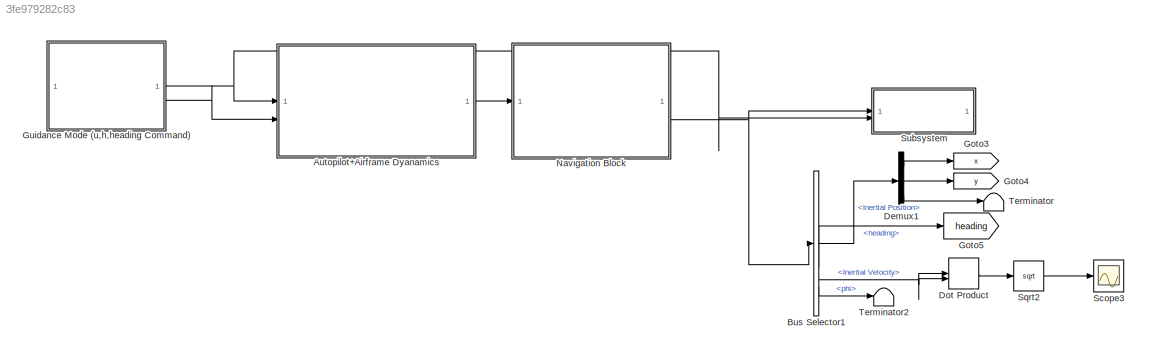
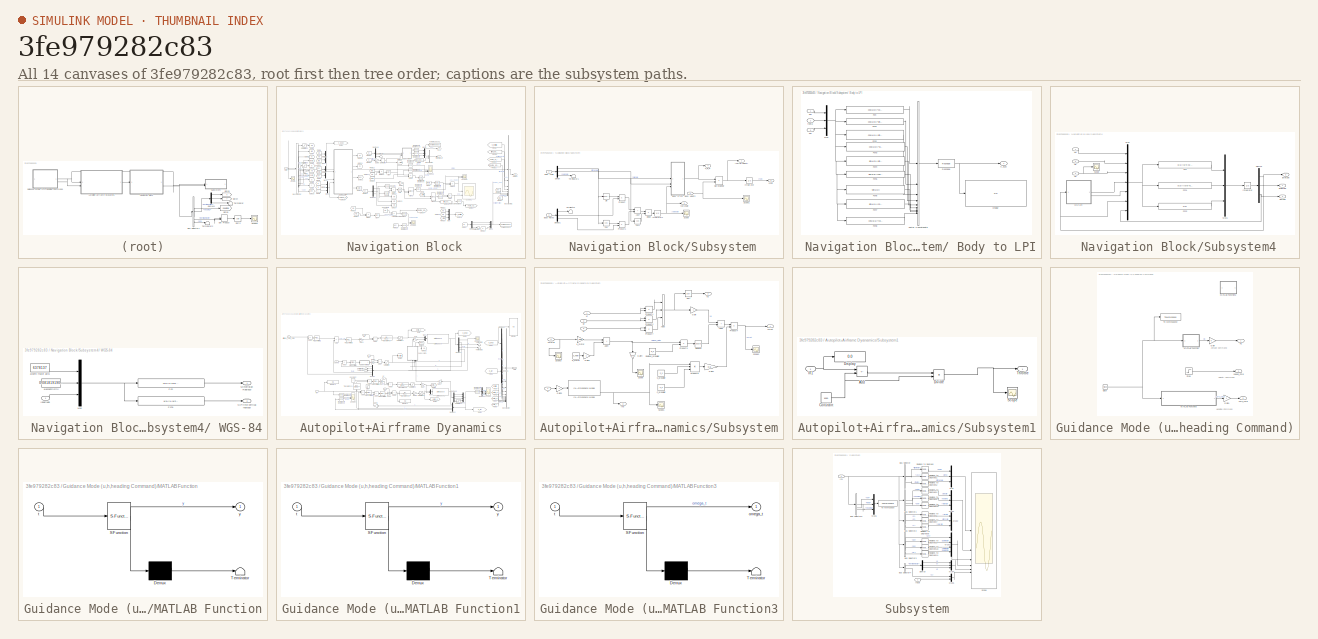
[diagram: thumbnail index - all 14 canvases of the model, root first then tree order]
MODEL slx_3fe979282c83
KIND model
CONFIG AbsTol = auto
CONFIG EnableMultiTasking = off
CONFIG FixedStep = auto
CONFIG MaxStep = auto
CONFIG MinStep = auto
CONFIG RelTol = 1e-3
CONFIG SampleTimeConstraint = Unconstrained
CONFIG SolverName = VariableStepAuto
CONFIG StartTime = 0.0
CONFIG StopTime = 100
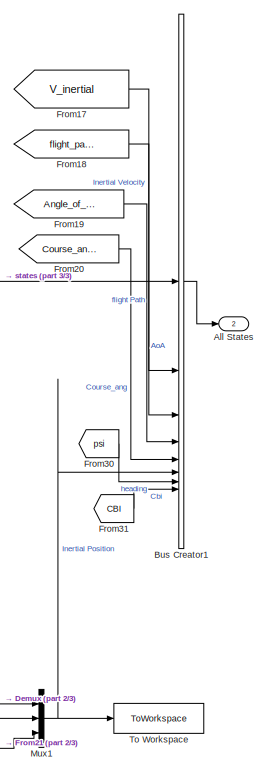
[diagram:  Navigation Block - part 1/3, right side, full height]
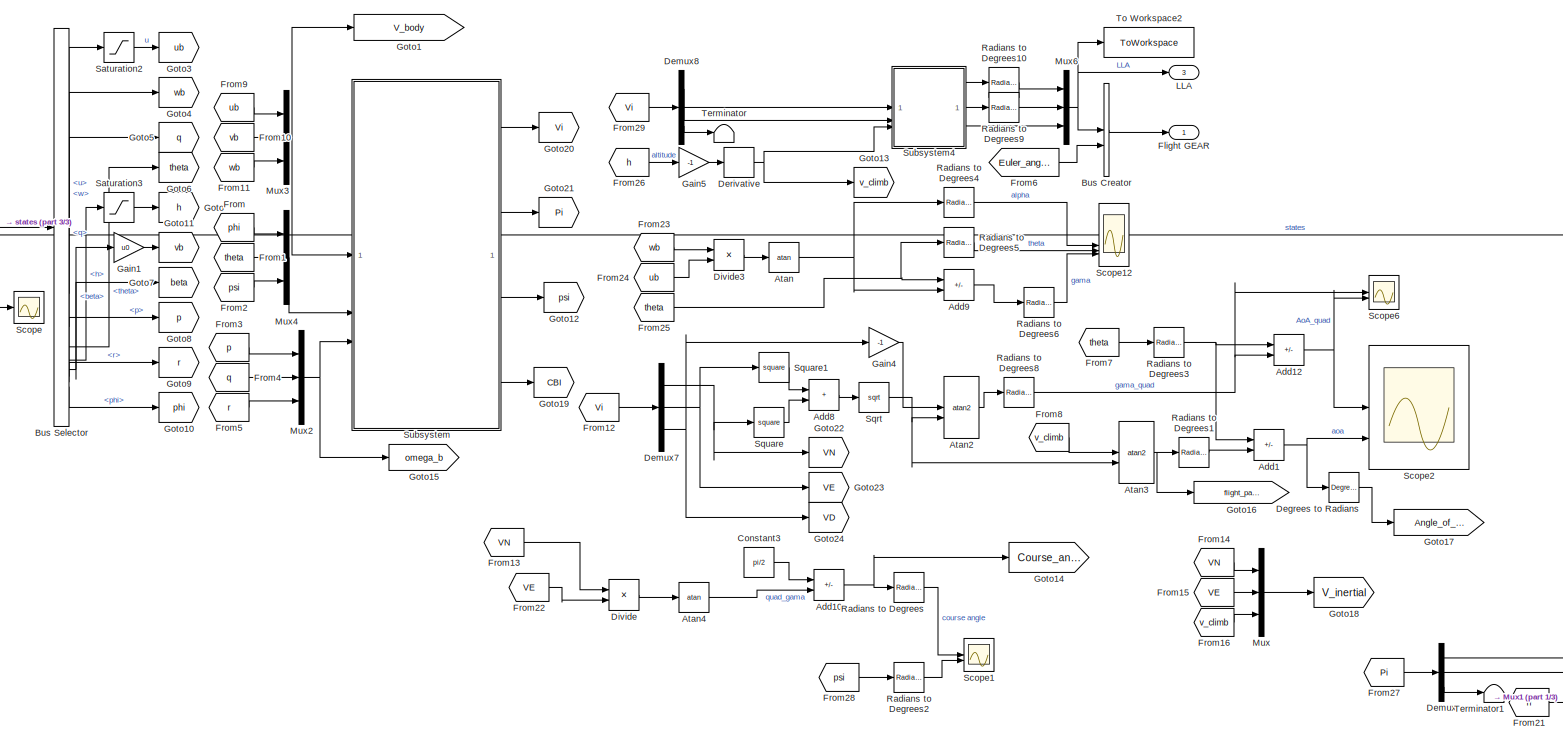
[diagram:  Navigation Block - part 2/3, most of the canvas]
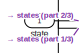
[diagram:  Navigation Block - part 3/3, middle left region]
BLOCK [SubSystem]  Navigation Block
BLOCK [Outport]  Navigation Block/ All States
  Port = 2
BLOCK [Outport]  Navigation Block/ Flight GEAR
BLOCK [Inport]  Navigation Block/ state
BLOCK [Sum]  Navigation Block/Add1
  IconShape = rectangular
  Inputs = +-
BLOCK [Sum]  Navigation Block/Add10
  IconShape = rectangular
  Inputs = +-
BLOCK [Sum]  Navigation Block/Add12
  IconShape = rectangular
  Inputs = +-
BLOCK [Sum]  Navigation Block/Add8
  IconShape = rectangular
BLOCK [Sum]  Navigation Block/Add9
  IconShape = rectangular
  Inputs = +-
BLOCK [Trigonometry]  Navigation Block/Atan
  Operator = atan
BLOCK [Trigonometry]  Navigation Block/Atan2
  Operator = atan2
BLOCK [Trigonometry]  Navigation Block/Atan3
  Operator = atan2
BLOCK [Trigonometry]  Navigation Block/Atan4
  Operator = atan
BLOCK [BusCreator]  Navigation Block/Bus Creator
  DisplayOption = bar
  InheritFromInputs = on
  Inputs = 2
BLOCK [BusCreator]  Navigation Block/Bus Creator1
  DisplayOption = bar
  InheritFromInputs = on
  Inputs = 8
BLOCK [BusSelector]  Navigation Block/Bus Selector
  OutputSignals = u,w,q,theta,h,beta,p,r,phi
BLOCK [Constant]  Navigation Block/Constant3
  Value = pi/2
BLOCK [Reference]  Navigation Block/Degrees to Radians  REF=simulink_extras/Transformations/Degrees to
Radians
  SourceBlock = simulink_extras/Transformations/Degrees to\nRadians
  SourceType = DegreesToRadians
BLOCK [Demux]  Navigation Block/Demux
  Outputs = 03
BLOCK [Demux]  Navigation Block/Demux7
  Outputs = 03
BLOCK [Demux]  Navigation Block/Demux8
  Outputs = 03
BLOCK [Derivative]  Navigation Block/Derivative
BLOCK [Product]  Navigation Block/Divide
  Inputs = */
BLOCK [Product]  Navigation Block/Divide3
  Inputs = */
BLOCK [From]  Navigation Block/From
  GotoTag = phi
BLOCK [From]  Navigation Block/From1
  GotoTag = theta
BLOCK [From]  Navigation Block/From10
  GotoTag = vb
BLOCK [From]  Navigation Block/From11
  GotoTag = wb
BLOCK [From]  Navigation Block/From12
  GotoTag = Vi
BLOCK [From]  Navigation Block/From13
  GotoTag = VN
BLOCK [From]  Navigation Block/From14
  GotoTag = VN
BLOCK [From]  Navigation Block/From15
  GotoTag = VE
BLOCK [From]  Navigation Block/From16
  GotoTag = v_climb
BLOCK [From]  Navigation Block/From17
  GotoTag = V_inertial
BLOCK [From]  Navigation Block/From18
  GotoTag = flight_path_ang
BLOCK [From]  Navigation Block/From19
  GotoTag = Angle_of_attack
BLOCK [From]  Navigation Block/From2
  GotoTag = psi
BLOCK [From]  Navigation Block/From20
  GotoTag = Course_angle
BLOCK [From]  Navigation Block/From21
  GotoTag = h
BLOCK [From]  Navigation Block/From22
  GotoTag = VE
BLOCK [From]  Navigation Block/From23
  GotoTag = wb
BLOCK [From]  Navigation Block/From24
  GotoTag = ub
BLOCK [From]  Navigation Block/From25
  GotoTag = theta
BLOCK [From]  Navigation Block/From26
  GotoTag = h
BLOCK [From]  Navigation Block/From27
  GotoTag = Pi
BLOCK [From]  Navigation Block/From28
  GotoTag = psi
BLOCK [From]  Navigation Block/From29
  GotoTag = Vi
BLOCK [From]  Navigation Block/From3
  GotoTag = p
BLOCK [From]  Navigation Block/From30
  GotoTag = psi
BLOCK [From]  Navigation Block/From31
  GotoTag = CBI
BLOCK [From]  Navigation Block/From4
  GotoTag = q
BLOCK [From]  Navigation Block/From5
  GotoTag = r
BLOCK [From]  Navigation Block/From6
  GotoTag = Euler_angle
BLOCK [From]  Navigation Block/From7
  GotoTag = theta
BLOCK [From]  Navigation Block/From8
  GotoTag = v_climb
BLOCK [From]  Navigation Block/From9
  GotoTag = ub
BLOCK [Gain]  Navigation Block/Gain1
  Gain = u0
BLOCK [Gain]  Navigation Block/Gain4
  Gain = -1
BLOCK [Gain]  Navigation Block/Gain5
  Gain = -1
BLOCK [Goto]  Navigation Block/Goto
  GotoTag = h
BLOCK [Goto]  Navigation Block/Goto1
  GotoTag = V_body
BLOCK [Goto]  Navigation Block/Goto10
  GotoTag = phi
BLOCK [Goto]  Navigation Block/Goto11
  GotoTag = vb
BLOCK [Goto]  Navigation Block/Goto12
  GotoTag = psi
BLOCK [Goto]  Navigation Block/Goto13
  GotoTag = v_climb
BLOCK [Goto]  Navigation Block/Goto14
  GotoTag = Course_angle
BLOCK [Goto]  Navigation Block/Goto15
  GotoTag = omega_b
BLOCK [Goto]  Navigation Block/Goto16
  GotoTag = flight_path_ang
BLOCK [Goto]  Navigation Block/Goto17
  GotoTag = Angle_of_attack
BLOCK [Goto]  Navigation Block/Goto18
  GotoTag = V_inertial
BLOCK [Goto]  Navigation Block/Goto19
  GotoTag = CBI
BLOCK [Goto]  Navigation Block/Goto20
  GotoTag = Vi
BLOCK [Goto]  Navigation Block/Goto21
  GotoTag = Pi
BLOCK [Goto]  Navigation Block/Goto22
  GotoTag = VN
BLOCK [Goto]  Navigation Block/Goto23
  GotoTag = VE
BLOCK [Goto]  Navigation Block/Goto24
  GotoTag = VD
BLOCK [Goto]  Navigation Block/Goto3
  GotoTag = ub
BLOCK [Goto]  Navigation Block/Goto4
  GotoTag = wb
BLOCK [Goto]  Navigation Block/Goto5
  GotoTag = q
BLOCK [Goto]  Navigation Block/Goto6
  GotoTag = theta
BLOCK [Goto]  Navigation Block/Goto7
  GotoTag = beta
BLOCK [Goto]  Navigation Block/Goto8
  GotoTag = p
BLOCK [Goto]  Navigation Block/Goto9
  GotoTag = r
BLOCK [Outport]  Navigation Block/LLA
  Port = 3
BLOCK [Mux]  Navigation Block/Mux
  DisplayOption = bar
  Inputs = 03
BLOCK [Mux]  Navigation Block/Mux1
  DisplayOption = bar
  Inputs = 03
BLOCK [Mux]  Navigation Block/Mux2
  DisplayOption = bar
  Inputs = 03
BLOCK [Mux]  Navigation Block/Mux3
  DisplayOption = bar
  Inputs = 03
BLOCK [Mux]  Navigation Block/Mux4
  DisplayOption = bar
  Inputs = 03
BLOCK [Mux]  Navigation Block/Mux6
  DisplayOption = bar
  Inputs = 03
  NameLocation = right
BLOCK [Reference]  Navigation Block/Radians to Degrees  REF=simulink_extras/Transformations/Radians
to Degrees
  SourceBlock = simulink_extras/Transformations/Radians\nto Degrees
  SourceType = RadiansToDegrees
BLOCK [Reference]  Navigation Block/Radians to Degrees1  REF=simulink_extras/Transformations/Radians
to Degrees
  SourceBlock = simulink_extras/Transformations/Radians\nto Degrees
  SourceType = RadiansToDegrees
BLOCK [Reference]  Navigation Block/Radians to Degrees10  REF=simulink_extras/Transformations/Radians
to Degrees
  SourceBlock = simulink_extras/Transformations/Radians\nto Degrees
  SourceType = RadiansToDegrees
BLOCK [Reference]  Navigation Block/Radians to Degrees2  REF=simulink_extras/Transformations/Radians
to Degrees
  SourceBlock = simulink_extras/Transformations/Radians\nto Degrees
  SourceType = RadiansToDegrees
BLOCK [Reference]  Navigation Block/Radians to Degrees3  REF=simulink_extras/Transformations/Radians
to Degrees
  SourceBlock = simulink_extras/Transformations/Radians\nto Degrees
  SourceType = RadiansToDegrees
BLOCK [Reference]  Navigation Block/Radians to Degrees4  REF=simulink_extras/Transformations/Radians
to Degrees
  SourceBlock = simulink_extras/Transformations/Radians\nto Degrees
  SourceType = RadiansToDegrees
BLOCK [Reference]  Navigation Block/Radians to Degrees5  REF=simulink_extras/Transformations/Radians
to Degrees
  SourceBlock = simulink_extras/Transformations/Radians\nto Degrees
  SourceType = RadiansToDegrees
BLOCK [Reference]  Navigation Block/Radians to Degrees6  REF=simulink_extras/Transformations/Radians
to Degrees
  SourceBlock = simulink_extras/Transformations/Radians\nto Degrees
  SourceType = RadiansToDegrees
BLOCK [Reference]  Navigation Block/Radians to Degrees8  REF=simulink_extras/Transformations/Radians
to Degrees
  SourceBlock = simulink_extras/Transformations/Radians\nto Degrees
  SourceType = RadiansToDegrees
BLOCK [Reference]  Navigation Block/Radians to Degrees9  REF=simulink_extras/Transformations/Radians
to Degrees
  SourceBlock = simulink_extras/Transformations/Radians\nto Degrees
  SourceType = RadiansToDegrees
BLOCK [Saturate]  Navigation Block/Saturation2
  Commented = through
  LowerLimit = 0
  UpperLimit = 20
BLOCK [Saturate]  Navigation Block/Saturation3
  LowerLimit = -6000
  UpperLimit = 0
BLOCK [Scope]  Navigation Block/Scope
  Floating = off
  NumInputPorts = 1
  ScopeSpecificationString = Simulink.scopes.TimeScopeBlockCfg('CurrentConfiguration', extmgr.ConfigurationSet(extmgr.Configuration('Core','General UI',true),extmgr.Configuration('Core','Source UI',true),extmgr.Configuration('Sources','WiredSimulink',true,'DataLoggingVariableName','ScopeData9'),extmgr.Configuration('Visuals','Time Domain',true,'SerializedDisplays',{struct('MinYLimReal','-2048.8052','MaxYLimReal','338.75613','...<+1892ch>
BLOCK [Scope]  Navigation Block/Scope1
  Floating = off
  NumInputPorts = 2
  ScopeSpecificationString = Simulink.scopes.TimeScopeBlockCfg('CurrentConfiguration', extmgr.ConfigurationSet(extmgr.Configuration('Core','General UI',true),extmgr.Configuration('Core','Source UI',true),extmgr.Configuration('Sources','WiredSimulink',true,'DataLoggingVariableName','ScopeData1'),extmgr.Configuration('Visuals','Time Domain',true,'SerializedDisplays',{struct('MinYLimReal','-25.52327','MaxYLimReal','202.83592','Y...<+1476ch>
BLOCK [Scope]  Navigation Block/Scope12
  Floating = off
  NumInputPorts = 4
  ScopeSpecificationString = Simulink.scopes.TimeScopeBlockCfg('CurrentConfiguration', extmgr.ConfigurationSet(extmgr.Configuration('Core','General UI',true),extmgr.Configuration('Core','Source UI',true),extmgr.Configuration('Sources','WiredSimulink',true,'DataLoggingVariableName','ScopeData6'),extmgr.Configuration('Visuals','Time Domain',true,'SerializedDisplays',{struct('MinYLimReal','-26.01671','MaxYLimReal','43.04583','YL...<+1611ch>
BLOCK [Scope]  Navigation Block/Scope2
  Floating = off
  NumInputPorts = 3
  ScopeSpecificationString = Simulink.scopes.TimeScopeBlockCfg('CurrentConfiguration', extmgr.ConfigurationSet(extmgr.Configuration('Core','General UI',true),extmgr.Configuration('Core','Source UI',true),extmgr.Configuration('Sources','WiredSimulink',true,'DataLoggingVariableName','ScopeData14'),extmgr.Configuration('Visuals','Time Domain',true,'SerializedDisplays',{struct('MinYLimReal','-62.38052','MaxYLimReal','141.18006','...<+1467ch>
BLOCK [Scope]  Navigation Block/Scope6
  Floating = off
  NumInputPorts = 3
  ScopeSpecificationString = Simulink.scopes.TimeScopeBlockCfg('CurrentConfiguration', extmgr.ConfigurationSet(extmgr.Configuration('Core','General UI',true),extmgr.Configuration('Core','Source UI',true),extmgr.Configuration('Sources','WiredSimulink',true,'DataLoggingVariableName','ScopeData8'),extmgr.Configuration('Visuals','Time Domain',true,'SerializedDisplays',{struct('MinYLimReal','-36.09074','MaxYLimReal','36.09053','YL...<+1468ch>
BLOCK [Sqrt]  Navigation Block/Sqrt
BLOCK [Math]  Navigation Block/Square
  Operator = square
BLOCK [Math]  Navigation Block/Square1
  Operator = square
BLOCK [SubSystem]  Navigation Block/Subsystem
BLOCK [Inport]  Navigation Block/Subsystem/ Body Velocity
BLOCK [SubSystem]  Navigation Block/Subsystem/ Body to LPI
  NameLocation = right
BLOCK [Outport]  Navigation Block/Subsystem/ Body to LPI/C_B_E
BLOCK [Display]  Navigation Block/Subsystem/ Body to LPI/Display
  Decimation = 1
BLOCK [Fcn]  Navigation Block/Subsystem/ Body to LPI/Fcn
  Expr = cos(u(2))*cos(u(3))
BLOCK [Fcn]  Navigation Block/Subsystem/ Body to LPI/Fcn1
  Expr = cos(u(3))*sin(u(1))*sin(u(2))-cos(u(1))*sin(u(3))
BLOCK [Fcn]  Navigation Block/Subsystem/ Body to LPI/Fcn2
  Expr = cos(u(1))*sin(u(2))*cos(u(3))+sin(u(1))*sin(u(3))
BLOCK [Fcn]  Navigation Block/Subsystem/ Body to LPI/Fcn3
  Expr = cos(u(2))*sin(u(3))
BLOCK [Fcn]  Navigation Block/Subsystem/ Body to LPI/Fcn4
  Expr = sin(u(3))*sin(u(1))*sin(u(2))+cos(u(1))*cos(u(3))
BLOCK [Fcn]  Navigation Block/Subsystem/ Body to LPI/Fcn5
  Expr = sin(u(3))*cos(u(1))*sin(u(2))-sin(u(1))*cos(u(3))
BLOCK [Fcn]  Navigation Block/Subsystem/ Body to LPI/Fcn6
  Expr = -sin(u(2))
BLOCK [Fcn]  Navigation Block/Subsystem/ Body to LPI/Fcn7
  Expr = sin(u(1))*cos(u(2))
BLOCK [Fcn]  Navigation Block/Subsystem/ Body to LPI/Fcn8
  Expr = cos(u(1))*cos(u(2))
BLOCK [Mux]  Navigation Block/Subsystem/ Body to LPI/Mux
  DisplayOption = bar
  Inputs = 3
BLOCK [Reshape]  Navigation Block/Subsystem/ Body to LPI/Reshape
  OutputDimensionality = Customize
  OutputDimensions = [3,3]
BLOCK [Concatenate]  Navigation Block/Subsystem/ Body to LPI/Vector Concatenate
  NumInputs = 09
BLOCK [Inport]  Navigation Block/Subsystem/ Body to LPI/phi
BLOCK [Inport]  Navigation Block/Subsystem/ Body to LPI/psi
  Port = 3
BLOCK [Inport]  Navigation Block/Subsystem/ Body to LPI/theta
  Port = 2
BLOCK [Inport]  Navigation Block/Subsystem/ Euler Angle 
  Port = 2
BLOCK [Outport]  Navigation Block/Subsystem/ Inertial Velocity 
BLOCK [Sum]  Navigation Block/Subsystem/Add7
  IconShape = rectangular
BLOCK [Inport]  Navigation Block/Subsystem/Body Rates
  Port = 3
BLOCK [Outport]  Navigation Block/Subsystem/C_B_E
  Port = 4
BLOCK [Trigonometry]  Navigation Block/Subsystem/Cos
  Operator = cos
BLOCK [Trigonometry]  Navigation Block/Subsystem/Cos1
  Operator = cos
BLOCK [Demux]  Navigation Block/Subsystem/Demux
  Outputs = 03
BLOCK [Demux]  Navigation Block/Subsystem/Demux1
  Outputs = 03
BLOCK [Product]  Navigation Block/Subsystem/Divide
  Inputs = */
BLOCK [Integrator]  Navigation Block/Subsystem/Integrator
BLOCK [Integrator]  Navigation Block/Subsystem/Integrator1
BLOCK [Product]  Navigation Block/Subsystem/MatrixMultiply
  Multiplication = Matrix(*)
BLOCK [Product]  Navigation Block/Subsystem/Product
BLOCK [Product]  Navigation Block/Subsystem/Product1
BLOCK [Scope]  Navigation Block/Subsystem/Scope
  Floating = off
  NumInputPorts = 1
  ScopeSpecificationString = Simulink.scopes.TimeScopeBlockCfg('CurrentConfiguration', extmgr.ConfigurationSet(extmgr.Configuration('Core','General UI',true),extmgr.Configuration('Core','Source UI',true),extmgr.Configuration('Sources','WiredSimulink',true,'DataLoggingVariableName','ScopeData10'),extmgr.Configuration('Visuals','Time Domain',true,'SerializedDisplays',{struct('MinYLimReal','-81.46281','MaxYLimReal','9.09219','YL...<+1446ch>
BLOCK [Scope]  Navigation Block/Subsystem/Scope1
  Floating = off
  NumInputPorts = 1
  ScopeSpecificationString = Simulink.scopes.TimeScopeBlockCfg('CurrentConfiguration', extmgr.ConfigurationSet(extmgr.Configuration('Core','General UI',true),extmgr.Configuration('Core','Source UI',true),extmgr.Configuration('Sources','WiredSimulink',true,'DataLoggingVariableName','ScopeData11'),extmgr.Configuration('Visuals','Time Domain',true,'SerializedDisplays',{struct('MinYLimReal','-11.24495','MaxYLimReal','35.00202','Y...<+1493ch>
BLOCK [Trigonometry]  Navigation Block/Subsystem/Sin
BLOCK [Terminator]  Navigation Block/Subsystem/Terminator
BLOCK [Terminator]  Navigation Block/Subsystem/Terminator1
BLOCK [Outport]  Navigation Block/Subsystem/XYZE
  Port = 2
BLOCK [Outport]  Navigation Block/Subsystem/yaw angle
  Port = 3
BLOCK [SubSystem]  Navigation Block/Subsystem4
BLOCK [Inport]  Navigation Block/Subsystem4/ VE
  Port = 2
BLOCK [Inport]  Navigation Block/Subsystem4/ VN
BLOCK [SubSystem]  Navigation Block/Subsystem4/ WGS-84
BLOCK [Outport]  Navigation Block/Subsystem4/ WGS-84/ M(meridian Radious)
BLOCK [Outport]  Navigation Block/Subsystem4/ WGS-84/ N(Prime vertical redious)
  Port = 2
BLOCK [Constant]  Navigation Block/Subsystem4/ WGS-84/ e(eccentricity)
  Value = 0.081819190842622
BLOCK [Inport]  Navigation Block/Subsystem4/ WGS-84/ longitude
BLOCK [Fcn]  Navigation Block/Subsystem4/ WGS-84/Fcn
  Expr = u(1)*(1-(u(2))^2)/(1-(u(2))^2*(sin(u(3)))^2)^1.5
BLOCK [Fcn]  Navigation Block/Subsystem4/ WGS-84/Fcn1
  Expr = u(1)/(1-(u(2))^2*(sin(u(3)))^2)^0.5
BLOCK [Mux]  Navigation Block/Subsystem4/ WGS-84/Mux
  DisplayOption = bar
  Inputs = 03
BLOCK [Constant]  Navigation Block/Subsystem4/ WGS-84/a(semi-major axis)
  Value = 6378137
BLOCK [Outport]  Navigation Block/Subsystem4/ altitude
  Port = 3
BLOCK [Outport]  Navigation Block/Subsystem4/ lattitude
  Port = 2
BLOCK [Demux]  Navigation Block/Subsystem4/Demux
  Outputs = 03
BLOCK [Fcn]  Navigation Block/Subsystem4/Fcn
  Expr = u(1)/(u(4)+u(7))
BLOCK [Fcn]  Navigation Block/Subsystem4/Fcn1
  Expr = u(2)/((u(5)+u(7))*cos(u(6)))
BLOCK [Fcn]  Navigation Block/Subsystem4/Fcn2
  Expr = u(3)
BLOCK [Integrator]  Navigation Block/Subsystem4/Integrator
BLOCK [Mux]  Navigation Block/Subsystem4/Mux
  DisplayOption = bar
  Inputs = 07
BLOCK [Mux]  Navigation Block/Subsystem4/Mux1
  DisplayOption = bar
  Inputs = 03
BLOCK [Scope]  Navigation Block/Subsystem4/Scope
  Floating = off
  NumInputPorts = 1
  ScopeSpecificationString = Simulink.scopes.TimeScopeBlockCfg('CurrentConfiguration', extmgr.ConfigurationSet(extmgr.Configuration('Core','General UI',true),extmgr.Configuration('Core','Source UI',true),extmgr.Configuration('Sources','WiredSimulink',true,'DataLoggingVariableName','ScopeData1'),extmgr.Configuration('Visuals','Time Domain',true,'SerializedDisplays',{struct('MinYLimReal','-5.2818','MaxYLimReal','0.58687','YLabe...<+1469ch>
BLOCK [Inport]  Navigation Block/Subsystem4/VD
  Port = 3
BLOCK [Outport]  Navigation Block/Subsystem4/longitude
BLOCK [Terminator]  Navigation Block/Terminator
BLOCK [Terminator]  Navigation Block/Terminator1
BLOCK [ToWorkspace]  Navigation Block/To Workspace
  FixptAsFi = on
  MaxDataPoints = inf
  SampleTime = -1
  VariableName = X
BLOCK [ToWorkspace]  Navigation Block/To Workspace2
  FixptAsFi = on
  MaxDataPoints = inf
  SampleTime = -1
  VariableName = LLA
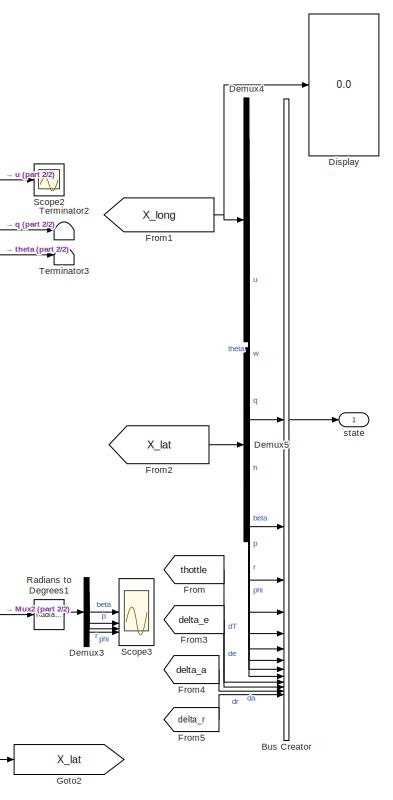
[diagram: Autopilot+Airframe Dyanamics - part 1/2, right side, full height]
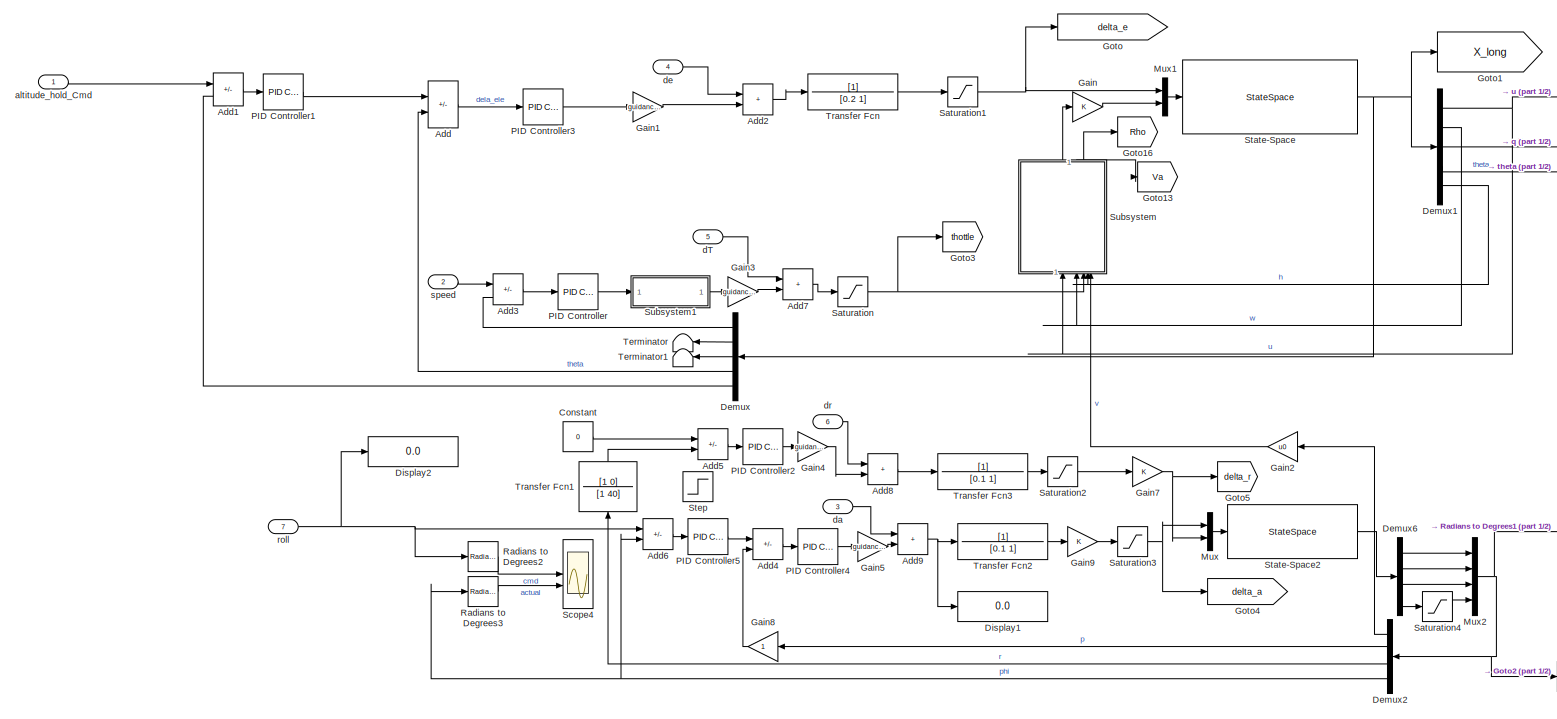
[diagram: Autopilot+Airframe Dyanamics - part 2/2, most of the canvas]
BLOCK [SubSystem] Autopilot+Airframe Dyanamics
BLOCK [Inport] Autopilot+Airframe Dyanamics/ altitude_hold_Cmd
BLOCK [Inport] Autopilot+Airframe Dyanamics/ dT
  Port = 5
BLOCK [Inport] Autopilot+Airframe Dyanamics/ da
  Port = 3
BLOCK [Inport] Autopilot+Airframe Dyanamics/ de
  Port = 4
BLOCK [Inport] Autopilot+Airframe Dyanamics/ dr
  Port = 6
BLOCK [Inport] Autopilot+Airframe Dyanamics/ roll
  Port = 7
BLOCK [Outport] Autopilot+Airframe Dyanamics/ state
BLOCK [Sum] Autopilot+Airframe Dyanamics/Add
  IconShape = rectangular
  Inputs = +-
BLOCK [Sum] Autopilot+Airframe Dyanamics/Add1
  IconShape = rectangular
  Inputs = +-
BLOCK [Sum] Autopilot+Airframe Dyanamics/Add2
  IconShape = rectangular
BLOCK [Sum] Autopilot+Airframe Dyanamics/Add3
  IconShape = rectangular
  Inputs = +-
BLOCK [Sum] Autopilot+Airframe Dyanamics/Add4
  IconShape = rectangular
  Inputs = +-
BLOCK [Sum] Autopilot+Airframe Dyanamics/Add5
  IconShape = rectangular
  Inputs = +-
BLOCK [Sum] Autopilot+Airframe Dyanamics/Add6
  IconShape = rectangular
  Inputs = +-
BLOCK [Sum] Autopilot+Airframe Dyanamics/Add7
  IconShape = rectangular
BLOCK [Sum] Autopilot+Airframe Dyanamics/Add8
  IconShape = rectangular
BLOCK [Sum] Autopilot+Airframe Dyanamics/Add9
  IconShape = rectangular
BLOCK [BusCreator] Autopilot+Airframe Dyanamics/Bus Creator
  DisplayOption = bar
  InheritFromInputs = on
  Inputs = 13
BLOCK [Constant] Autopilot+Airframe Dyanamics/Constant
  Value = 0
BLOCK [Demux] Autopilot+Airframe Dyanamics/Demux
  NameLocation = top
  Outputs = 05
BLOCK [Demux] Autopilot+Airframe Dyanamics/Demux1
  Outputs = 05
BLOCK [Demux] Autopilot+Airframe Dyanamics/Demux2
  NameLocation = top
  Outputs = 04
BLOCK [Demux] Autopilot+Airframe Dyanamics/Demux3
  Outputs = 04
BLOCK [Demux] Autopilot+Airframe Dyanamics/Demux4
  Outputs = 05
BLOCK [Demux] Autopilot+Airframe Dyanamics/Demux5
  Outputs = 04
BLOCK [Demux] Autopilot+Airframe Dyanamics/Demux6
  Outputs = 04
BLOCK [Display] Autopilot+Airframe Dyanamics/Display
  Decimation = 1
BLOCK [Display] Autopilot+Airframe Dyanamics/Display1
  Decimation = 1
BLOCK [Display] Autopilot+Airframe Dyanamics/Display2
  Decimation = 1
BLOCK [From] Autopilot+Airframe Dyanamics/From
  GotoTag = thottle
BLOCK [From] Autopilot+Airframe Dyanamics/From1
  GotoTag = X_long
BLOCK [From] Autopilot+Airframe Dyanamics/From2
  GotoTag = X_lat
BLOCK [From] Autopilot+Airframe Dyanamics/From3
  GotoTag = delta_e
BLOCK [From] Autopilot+Airframe Dyanamics/From4
  GotoTag = delta_a
BLOCK [From] Autopilot+Airframe Dyanamics/From5
  GotoTag = delta_r
BLOCK [Gain] Autopilot+Airframe Dyanamics/Gain
BLOCK [Gain] Autopilot+Airframe Dyanamics/Gain1
  Gain = guidance_mode_on
BLOCK [Gain] Autopilot+Airframe Dyanamics/Gain2
  Gain = u0
  NameLocation = top
BLOCK [Gain] Autopilot+Airframe Dyanamics/Gain3
  Gain = guidance_mode_on
BLOCK [Gain] Autopilot+Airframe Dyanamics/Gain4
  Gain = guidance_mode_on
BLOCK [Gain] Autopilot+Airframe Dyanamics/Gain5
  Gain = guidance_mode_on
BLOCK [Gain] Autopilot+Airframe Dyanamics/Gain7
BLOCK [Gain] Autopilot+Airframe Dyanamics/Gain8
  Gain = 1
  NameLocation = top
BLOCK [Gain] Autopilot+Airframe Dyanamics/Gain9
BLOCK [Goto] Autopilot+Airframe Dyanamics/Goto
  GotoTag = delta_e
BLOCK [Goto] Autopilot+Airframe Dyanamics/Goto1
  GotoTag = X_long
BLOCK [Goto] Autopilot+Airframe Dyanamics/Goto13
  GotoTag = Va
BLOCK [Goto] Autopilot+Airframe Dyanamics/Goto16
  GotoTag = Rho
BLOCK [Goto] Autopilot+Airframe Dyanamics/Goto2
  GotoTag = X_lat
BLOCK [Goto] Autopilot+Airframe Dyanamics/Goto3
  GotoTag = thottle
BLOCK [Goto] Autopilot+Airframe Dyanamics/Goto4
  GotoTag = delta_a
BLOCK [Goto] Autopilot+Airframe Dyanamics/Goto5
  GotoTag = delta_r
BLOCK [Mux] Autopilot+Airframe Dyanamics/Mux
  DisplayOption = bar
  Inputs = 2
BLOCK [Mux] Autopilot+Airframe Dyanamics/Mux1
  DisplayOption = bar
  Inputs = 2
BLOCK [Mux] Autopilot+Airframe Dyanamics/Mux2
  DisplayOption = bar
  Inputs = 04
BLOCK [Reference] Autopilot+Airframe Dyanamics/PID Controller  REF=slpidlib/PID Controller
  LibrarySourceBlock = simulink/Continuous/PID Controller
  SourceBlock = slpidlib/PID Controller
  SourceType = PID 1dof
BLOCK [Reference] Autopilot+Airframe Dyanamics/PID Controller1  REF=slpidlib/PID Controller
  LibrarySourceBlock = simulink/Continuous/PID Controller
  SourceBlock = slpidlib/PID Controller
  SourceType = PID 1dof
BLOCK [Reference] Autopilot+Airframe Dyanamics/PID Controller2  REF=slpidlib/PID Controller
  LibrarySourceBlock = simulink/Continuous/PID Controller
  SourceBlock = slpidlib/PID Controller
  SourceType = PID 1dof
BLOCK [Reference] Autopilot+Airframe Dyanamics/PID Controller3  REF=slpidlib/PID Controller
  LibrarySourceBlock = simulink/Continuous/PID Controller
  SourceBlock = slpidlib/PID Controller
  SourceType = PID 1dof
BLOCK [Reference] Autopilot+Airframe Dyanamics/PID Controller4  REF=slpidlib/PID Controller
  LibrarySourceBlock = simulink/Continuous/PID Controller
  SourceBlock = slpidlib/PID Controller
  SourceType = PID 1dof
BLOCK [Reference] Autopilot+Airframe Dyanamics/PID Controller5  REF=slpidlib/PID Controller
  LibrarySourceBlock = simulink/Continuous/PID Controller
  SourceBlock = slpidlib/PID Controller
  SourceType = PID 1dof
BLOCK [Reference] Autopilot+Airframe Dyanamics/Radians to Degrees1  REF=simulink_extras/Transformations/Radians
to Degrees
  SourceBlock = simulink_extras/Transformations/Radians\nto Degrees
  SourceType = RadiansToDegrees
BLOCK [Reference] Autopilot+Airframe Dyanamics/Radians to Degrees2  REF=simulink_extras/Transformations/Radians
to Degrees
  SourceBlock = simulink_extras/Transformations/Radians\nto Degrees
  SourceType = RadiansToDegrees
BLOCK [Reference] Autopilot+Airframe Dyanamics/Radians to Degrees3  REF=simulink_extras/Transformations/Radians
to Degrees
  SourceBlock = simulink_extras/Transformations/Radians\nto Degrees
  SourceType = RadiansToDegrees
BLOCK [Saturate] Autopilot+Airframe Dyanamics/Saturation
  LowerLimit = 0
  UpperLimit = 100
BLOCK [Saturate] Autopilot+Airframe Dyanamics/Saturation1
  LowerLimit = -pi/4
  UpperLimit = pi/4
BLOCK [Saturate] Autopilot+Airframe Dyanamics/Saturation2
  Commented = through
  LowerLimit = -pi/6
  UpperLimit = pi/6
BLOCK [Saturate] Autopilot+Airframe Dyanamics/Saturation3
  Commented = through
  LowerLimit = -pi/12
  UpperLimit = pi/12
BLOCK [Saturate] Autopilot+Airframe Dyanamics/Saturation4
  LowerLimit = -pi/4
  UpperLimit = pi/4
BLOCK [Scope] Autopilot+Airframe Dyanamics/Scope2
  Floating = off
  NumInputPorts = 1
  ScopeSpecificationString = Simulink.scopes.TimeScopeBlockCfg('CurrentConfiguration', extmgr.ConfigurationSet(extmgr.Configuration('Core','General UI',true),extmgr.Configuration('Core','Source UI',true),extmgr.Configuration('Sources','WiredSimulink',true,'DataLoggingVariableName','ScopeData3'),extmgr.Configuration('Visuals','Time Domain',true,'SerializedDisplays',{struct('MinYLimReal','3.40372','MaxYLimReal','19.36654','YLab...<+1435ch>
BLOCK [Scope] Autopilot+Airframe Dyanamics/Scope3
  Floating = off
  NumInputPorts = 4
  ScopeSpecificationString = Simulink.scopes.TimeScopeBlockCfg('CurrentConfiguration', extmgr.ConfigurationSet(extmgr.Configuration('Core','General UI',true),extmgr.Configuration('Core','Source UI',true),extmgr.Configuration('Sources','WiredSimulink',true,'DataLoggingVariableName','ScopeData2'),extmgr.Configuration('Visuals','Time Domain',true,'SerializedDisplays',{struct('MinYLimReal','-0.00001','MaxYLimReal','0.00003','YLab...<+1541ch>
BLOCK [Scope] Autopilot+Airframe Dyanamics/Scope4
  Floating = off
  NumInputPorts = 2
  ScopeSpecificationString = Simulink.scopes.TimeScopeBlockCfg('CurrentConfiguration', extmgr.ConfigurationSet(extmgr.Configuration('Core','General UI',true),extmgr.Configuration('Core','Source UI',true),extmgr.Configuration('Sources','WiredSimulink',true,'DataLoggingVariableName','ScopeData3'),extmgr.Configuration('Visuals','Time Domain',true,'SerializedDisplays',{struct('MinYLimReal','-1.00000','MaxYLimReal','1.00000','YLab...<+1487ch>
BLOCK [StateSpace] Autopilot+Airframe Dyanamics/State-Space
  A = A_long
  B = B_long
  C = C_long
  D = D_long
  InitialCondition = [5 0 0 0 0]'
  ParameterTunability = Unconstrained
BLOCK [StateSpace] Autopilot+Airframe Dyanamics/State-Space2
  A = A_lat
  B = B_lat
  C = C_lat
  D = D_lat
  InitialCondition = 0
BLOCK [Step] Autopilot+Airframe Dyanamics/Step
  SampleTime = 0
  Time = 0
BLOCK [SubSystem] Autopilot+Airframe Dyanamics/Subsystem
  NameLocation = right
BLOCK [Constant] Autopilot+Airframe Dyanamics/Subsystem/ C_propeller
  Value = C_p
BLOCK [Constant] Autopilot+Airframe Dyanamics/Subsystem/ Radious_propeller
  Value = R_p
BLOCK [Constant] Autopilot+Airframe Dyanamics/Subsystem/ S_propeller
  Value = S_p
BLOCK [Inport] Autopilot+Airframe Dyanamics/Subsystem/ Throttle
  Port = 3
BLOCK [Inport] Autopilot+Airframe Dyanamics/Subsystem/ h
  Port = 4
BLOCK [Gain] Autopilot+Airframe Dyanamics/Subsystem/ k_motor
  Gain = K_motor
BLOCK [Constant] Autopilot+Airframe Dyanamics/Subsystem/ q_motor
  Value = q_motor
BLOCK [Outport] Autopilot+Airframe Dyanamics/Subsystem/ rho
  Port = 3
BLOCK [Outport] Autopilot+Airframe Dyanamics/Subsystem/ va
  Port = 2
BLOCK [Inport] Autopilot+Airframe Dyanamics/Subsystem/ vr
  Port = 5
BLOCK [Sum] Autopilot+Airframe Dyanamics/Subsystem/Add4
  IconShape = rectangular
BLOCK [Sum] Autopilot+Airframe Dyanamics/Subsystem/Add5
  IconShape = rectangular
  Inputs = +++
BLOCK [Sum] Autopilot+Airframe Dyanamics/Subsystem/Add6
  IconShape = rectangular
BLOCK [Gain] Autopilot+Airframe Dyanamics/Subsystem/Gain
  Gain = -1
BLOCK [Gain] Autopilot+Airframe Dyanamics/Subsystem/Gain1
  Gain = 0.5
BLOCK [Gain] Autopilot+Airframe Dyanamics/Subsystem/Gain2
  Gain = 1
BLOCK [Gain] Autopilot+Airframe Dyanamics/Subsystem/Gain3
  Gain = -1
BLOCK [Gain] Autopilot+Airframe Dyanamics/Subsystem/Gain4
  Gain = 9.5492
  NameLocation = left
BLOCK [Reference] Autopilot+Airframe Dyanamics/Subsystem/ISA Atmosphere Model  REF=aerolibatmos2/ISA Atmosphere Model
  SourceBlock = aerolibatmos2/ISA Atmosphere Model
  SourceType = International Standard Atmosphere Model
BLOCK [Product] Autopilot+Airframe Dyanamics/Subsystem/Product1
BLOCK [Product] Autopilot+Airframe Dyanamics/Subsystem/Product2
BLOCK [Product] Autopilot+Airframe Dyanamics/Subsystem/Product3
BLOCK [Product] Autopilot+Airframe Dyanamics/Subsystem/Product4
BLOCK [Product] Autopilot+Airframe Dyanamics/Subsystem/Product5
  Inputs = 03
BLOCK [Product] Autopilot+Airframe Dyanamics/Subsystem/Product7
BLOCK [Scope] Autopilot+Airframe Dyanamics/Subsystem/Scope
  Floating = off
  NumInputPorts = 2
  ScopeSpecificationString = Simulink.scopes.TimeScopeBlockCfg('CurrentConfiguration', extmgr.ConfigurationSet(extmgr.Configuration('Core','General UI',true),extmgr.Configuration('Core','Source UI',true),extmgr.Configuration('Sources','WiredSimulink',true,'DataLoggingVariableName','ScopeData1'),extmgr.Configuration('Visuals','Time Domain',true,'SerializedDisplays',{struct('MinYLimReal','-2113.25814','MaxYLimReal','7135.86147'...<+1473ch>
BLOCK [Scope] Autopilot+Airframe Dyanamics/Subsystem/Scope1
  Floating = off
  NumInputPorts = 1
  ScopeSpecificationString = Simulink.scopes.TimeScopeBlockCfg('CurrentConfiguration', extmgr.ConfigurationSet(extmgr.Configuration('Core','General UI',true),extmgr.Configuration('Core','Source UI',true),extmgr.Configuration('Sources','WiredSimulink',true,'DataLoggingVariableName','ScopeData3'),extmgr.Configuration('Visuals','Time Domain',true,'SerializedDisplays',{struct('MinYLimReal','0.67892','MaxYLimReal','1.28568','YLabe...<+1454ch>
BLOCK [Scope] Autopilot+Airframe Dyanamics/Subsystem/Scope2
  Floating = off
  NumInputPorts = 1
  ScopeSpecificationString = Simulink.scopes.TimeScopeBlockCfg('CurrentConfiguration', extmgr.ConfigurationSet(extmgr.Configuration('Core','General UI',true),extmgr.Configuration('Core','Source UI',true),extmgr.Configuration('Sources','WiredSimulink',true,'DataLoggingVariableName','ScopeData13'),extmgr.Configuration('Visuals','Time Domain',true,'SerializedDisplays',{struct('MinYLimReal','-78557.37929','MaxYLimReal','707006.17...<+1473ch>
BLOCK [Scope] Autopilot+Airframe Dyanamics/Subsystem/Scope3
  Floating = off
  NumInputPorts = 1
  ScopeSpecificationString = Simulink.scopes.TimeScopeBlockCfg('CurrentConfiguration', extmgr.ConfigurationSet(extmgr.Configuration('Core','General UI',true),extmgr.Configuration('Core','Source UI',true),extmgr.Configuration('Sources','WiredSimulink',true,'DataLoggingVariableName','ScopeData5'),extmgr.Configuration('Visuals','Time Domain',true,'SerializedDisplays',{struct('MinYLimReal','-12.5','MaxYLimReal','112.5','YLabelRea...<+1398ch>
BLOCK [Sqrt] Autopilot+Airframe Dyanamics/Subsystem/Sqrt
BLOCK [Math] Autopilot+Airframe Dyanamics/Subsystem/Square
  Operator = square
BLOCK [Outport] Autopilot+Airframe Dyanamics/Subsystem/Thrust
BLOCK [Inport] Autopilot+Airframe Dyanamics/Subsystem/ur
BLOCK [Inport] Autopilot+Airframe Dyanamics/Subsystem/wr
  Port = 2
BLOCK [SubSystem] Autopilot+Airframe Dyanamics/Subsystem1
  Commented = through
BLOCK [Outport] Autopilot+Airframe Dyanamics/Subsystem1/ Throttle
BLOCK [Sum] Autopilot+Airframe Dyanamics/Subsystem1/Add
  IconShape = rectangular
  Inputs = +-
BLOCK [Constant] Autopilot+Airframe Dyanamics/Subsystem1/Constant
  Value = 1000
BLOCK [Display] Autopilot+Airframe Dyanamics/Subsystem1/Display
  Decimation = 1
BLOCK [Product] Autopilot+Airframe Dyanamics/Subsystem1/Divide
  Inputs = */
BLOCK [Inport] Autopilot+Airframe Dyanamics/Subsystem1/In1
BLOCK [Scope] Autopilot+Airframe Dyanamics/Subsystem1/Scope
  Floating = off
  NumInputPorts = 1
  ScopeSpecificationString = Simulink.scopes.TimeScopeBlockCfg('CurrentConfiguration', extmgr.ConfigurationSet(extmgr.Configuration('Core','General UI',true),extmgr.Configuration('Core','Source UI',true),extmgr.Configuration('Sources','WiredSimulink',true,'DataLoggingVariableName','ScopeData10'),extmgr.Configuration('Visuals','Time Domain',true,'SerializedDisplays',{struct('MinYLimReal','-946.52977','MaxYLimReal','125.98943',...<+1459ch>
BLOCK [Terminator] Autopilot+Airframe Dyanamics/Terminator
  NameLocation = top
BLOCK [Terminator] Autopilot+Airframe Dyanamics/Terminator1
  NameLocation = top
BLOCK [Terminator] Autopilot+Airframe Dyanamics/Terminator2
BLOCK [Terminator] Autopilot+Airframe Dyanamics/Terminator3
BLOCK [TransferFcn] Autopilot+Airframe Dyanamics/Transfer Fcn
  Denominator = [0.2  1]
BLOCK [TransferFcn] Autopilot+Airframe Dyanamics/Transfer Fcn1
  Denominator = [1  40]
  NameLocation = right
  Numerator = [1  0]
BLOCK [TransferFcn] Autopilot+Airframe Dyanamics/Transfer Fcn2
  Denominator = [0.1  1]
BLOCK [TransferFcn] Autopilot+Airframe Dyanamics/Transfer Fcn3
  Denominator = [0.1  1]
BLOCK [Inport] Autopilot+Airframe Dyanamics/speed
  Port = 2
BLOCK [BusSelector] Bus Selector1
  OutputSignals = Inertial Position,heading,Inertial Velocity,states.phi
BLOCK [Demux] Demux1
  Outputs = 03
BLOCK [DotProduct] Dot Product
  OutDataTypeStr = Inherit: Inherit via internal rule
BLOCK [Goto] Goto3
  GotoTag = x
BLOCK [Goto] Goto4
  GotoTag = y
BLOCK [Goto] Goto5
  GotoTag = heading
BLOCK [SubSystem] Guidance Mode (u,h,heading Command)
BLOCK [Clock] Guidance Mode (u,h,heading Command)/Clock
BLOCK [Gain] Guidance Mode (u,h,heading Command)/Gain
BLOCK [Gain] Guidance Mode (u,h,heading Command)/Gain1
  Gain = 1
BLOCK [Outport] Guidance Mode (u,h,heading Command)/Hc
BLOCK [SubSystem] Guidance Mode (u,h,heading Command)/MATLAB Function
  ErrorFcn = Stateflow.Translate.translate
  LibrarySourceBlock = simulink/User-Defined\nFunctions/MATLAB Function
  PermitHierarchicalResolution = ExplicitOnly
  SFBlockType = MATLAB Function
  TreatAsAtomicUnit = on
BLOCK [Demux] Guidance Mode (u,h,heading Command)/MATLAB Function/ Demux 
  Outputs = 1
BLOCK [S-Function] Guidance Mode (u,h,heading Command)/MATLAB Function/ SFunction 
  EnableBusSupport = on
  FunctionName = sf_sfun
  PortCounts = [1 2]
  SFcnIsStateOwnerBlock = off
  SFunctionDeploymentMode = off
  Tag = Stateflow S-Function 2
BLOCK [Terminator] Guidance Mode (u,h,heading Command)/MATLAB Function/ Terminator 
BLOCK [Inport] Guidance Mode (u,h,heading Command)/MATLAB Function/t
BLOCK [Outport] Guidance Mode (u,h,heading Command)/MATLAB Function/y
BLOCK [SubSystem] Guidance Mode (u,h,heading Command)/MATLAB Function1
  Commented = on
  ErrorFcn = Stateflow.Translate.translate
  LibrarySourceBlock = simulink/User-Defined\nFunctions/MATLAB Function
  PermitHierarchicalResolution = ExplicitOnly
  SFBlockType = MATLAB Function
  TreatAsAtomicUnit = on
BLOCK [Demux] Guidance Mode (u,h,heading Command)/MATLAB Function1/ Demux 
  Outputs = 1
BLOCK [S-Function] Guidance Mode (u,h,heading Command)/MATLAB Function1/ SFunction 
  EnableBusSupport = on
  FunctionName = sf_sfun
  PortCounts = [1 2]
  SFcnIsStateOwnerBlock = off
  SFunctionDeploymentMode = off
  Tag = Stateflow S-Function 5
BLOCK [Terminator] Guidance Mode (u,h,heading Command)/MATLAB Function1/ Terminator 
BLOCK [Inport] Guidance Mode (u,h,heading Command)/MATLAB Function1/t
BLOCK [Outport] Guidance Mode (u,h,heading Command)/MATLAB Function1/y
BLOCK [SubSystem] Guidance Mode (u,h,heading Command)/MATLAB Function3
  ErrorFcn = Stateflow.Translate.translate
  LibrarySourceBlock = simulink/User-Defined\nFunctions/MATLAB Function
  PermitHierarchicalResolution = ExplicitOnly
  SFBlockType = MATLAB Function
  TreatAsAtomicUnit = on
BLOCK [Demux] Guidance Mode (u,h,heading Command)/MATLAB Function3/ Demux 
  Outputs = 1
BLOCK [S-Function] Guidance Mode (u,h,heading Command)/MATLAB Function3/ SFunction 
  EnableBusSupport = on
  FunctionName = sf_sfun
  PortCounts = [1 2]
  SFcnIsStateOwnerBlock = off
  SFunctionDeploymentMode = off
  Tag = Stateflow S-Function 4
BLOCK [Terminator] Guidance Mode (u,h,heading Command)/MATLAB Function3/ Terminator 
BLOCK [Outport] Guidance Mode (u,h,heading Command)/MATLAB Function3/omega_t
BLOCK [Inport] Guidance Mode (u,h,heading Command)/MATLAB Function3/t
BLOCK [Step] Guidance Mode (u,h,heading Command)/Step
  After = 15
  SampleTime = 0
  Time = 0
BLOCK [ToWorkspace] Guidance Mode (u,h,heading Command)/To Workspace2
  FixptAsFi = on
  MaxDataPoints = inf
  SampleTime = -1
  VariableName = time_T
BLOCK [Outport] Guidance Mode (u,h,heading Command)/Turn_cmd
  Port = 3
BLOCK [Outport] Guidance Mode (u,h,heading Command)/speed_Cmd
  Port = 2
BLOCK [Scope] Scope3
  Floating = off
  NumInputPorts = 1
  ScopeSpecificationString = Simulink.scopes.TimeScopeBlockCfg('CurrentConfiguration', extmgr.ConfigurationSet(extmgr.Configuration('Core','General UI',true),extmgr.Configuration('Core','Source UI',true),extmgr.Configuration('Sources','WiredSimulink',true,'DataLoggingVariableName','ScopeData7','DataLoggingSaveFormat','Array','DataLoggingLimitDataPoints',true,'DataLoggingDecimation','1'),extmgr.Configuration('Visuals','Time Do...<+1697ch>
BLOCK [Sqrt] Sqrt2
BLOCK [SubSystem] Subsystem
BLOCK [BusSelector] Subsystem/Bus Selector
  OutputSignals = flight Path,AoA,states.theta
BLOCK [BusSelector] Subsystem/Bus Selector1
  OutputSignals = states.beta,heading,states.phi
BLOCK [BusSelector] Subsystem/Bus Selector2
  OutputSignals = states.p,states.q,states.r
BLOCK [BusSelector] Subsystem/Bus Selector3
  OutputSignals = states.dT,states.de,states.da,states.dr
BLOCK [BusSelector] Subsystem/Bus Selector4
  OutputSignals = Inertial Velocity,states.h
BLOCK [BusSelector] Subsystem/Bus Selector5
  OutputSignals = states.theta,states.phi,heading
BLOCK [Demux] Subsystem/Demux
  Outputs = 03
BLOCK [Inport] Subsystem/In1
BLOCK [Inport] Subsystem/Input
  Port = 2
BLOCK [Mux] Subsystem/Mux
  DisplayOption = bar
  Inputs = 03
BLOCK [Mux] Subsystem/Mux1
  DisplayOption = bar
  Inputs = 03
BLOCK [Mux] Subsystem/Mux2
  DisplayOption = bar
  Inputs = 03
BLOCK [Mux] Subsystem/Mux3
  DisplayOption = bar
  Inputs = 04
BLOCK [Mux] Subsystem/Mux4
  DisplayOption = bar
  Inputs = 03
BLOCK [Mux] Subsystem/Mux5
  DisplayOption = bar
  Inputs = 2
BLOCK [Mux] Subsystem/Mux6
  DisplayOption = bar
  Inputs = 03
BLOCK [Reference] Subsystem/Radians to Degrees  REF=simulink_extras/Transformations/Radians
to Degrees
  SourceBlock = simulink_extras/Transformations/Radians\nto Degrees
  SourceType = RadiansToDegrees
BLOCK [Reference] Subsystem/Radians to Degrees1  REF=simulink_extras/Transformations/Radians
to Degrees
  SourceBlock = simulink_extras/Transformations/Radians\nto Degrees
  SourceType = RadiansToDegrees
BLOCK [Reference] Subsystem/Radians to Degrees10  REF=simulink_extras/Transformations/Radians
to Degrees
  SourceBlock = simulink_extras/Transformations/Radians\nto Degrees
  SourceType = RadiansToDegrees
BLOCK [Reference] Subsystem/Radians to Degrees11  REF=simulink_extras/Transformations/Radians
to Degrees
  SourceBlock = simulink_extras/Transformations/Radians\nto Degrees
  SourceType = RadiansToDegrees
BLOCK [Reference] Subsystem/Radians to Degrees12  REF=simulink_extras/Transformations/Radians
to Degrees
  SourceBlock = simulink_extras/Transformations/Radians\nto Degrees
  SourceType = RadiansToDegrees
BLOCK [Reference] Subsystem/Radians to Degrees2  REF=simulink_extras/Transformations/Radians
to Degrees
  SourceBlock = simulink_extras/Transformations/Radians\nto Degrees
  SourceType = RadiansToDegrees
BLOCK [Reference] Subsystem/Radians to Degrees4  REF=simulink_extras/Transformations/Radians
to Degrees
  SourceBlock = simulink_extras/Transformations/Radians\nto Degrees
  SourceType = RadiansToDegrees
BLOCK [Reference] Subsystem/Radians to Degrees5  REF=simulink_extras/Transformations/Radians
to Degrees
  SourceBlock = simulink_extras/Transformations/Radians\nto Degrees
  SourceType = RadiansToDegrees
BLOCK [Reference] Subsystem/Radians to Degrees6  REF=simulink_extras/Transformations/Radians
to Degrees
  SourceBlock = simulink_extras/Transformations/Radians\nto Degrees
  SourceType = RadiansToDegrees
BLOCK [Reference] Subsystem/Radians to Degrees7  REF=simulink_extras/Transformations/Radians
to Degrees
  SourceBlock = simulink_extras/Transformations/Radians\nto Degrees
  SourceType = RadiansToDegrees
BLOCK [Reference] Subsystem/Radians to Degrees8  REF=simulink_extras/Transformations/Radians
to Degrees
  SourceBlock = simulink_extras/Transformations/Radians\nto Degrees
  SourceType = RadiansToDegrees
BLOCK [Reference] Subsystem/Radians to Degrees9  REF=simulink_extras/Transformations/Radians
to Degrees
  SourceBlock = simulink_extras/Transformations/Radians\nto Degrees
  SourceType = RadiansToDegrees
BLOCK [Scope] Subsystem/Scope
  Floating = off
  NumInputPorts = 6
  ScopeSpecificationString = Simulink.scopes.TimeScopeBlockCfg('CurrentConfiguration', extmgr.ConfigurationSet(extmgr.Configuration('Core','General UI',true),extmgr.Configuration('Core','Source UI',true),extmgr.Configuration('Sources','WiredSimulink',true,'DataLoggingVariableName','ScopeData2'),extmgr.Configuration('Visuals','Time Domain',true,'SerializedDisplays',{struct('MinYLimReal','-33.77317','MaxYLimReal','303.89433','Y...<+5357ch>
BLOCK [ToWorkspace] Subsystem/To Workspace
  FixptAsFi = on
  MaxDataPoints = inf
  SampleTime = -1
  VariableName = euler_angle
BLOCK [Terminator] Terminator
BLOCK [Terminator] Terminator2
ANNOTATION Guidance Mode (u,h,heading Command): Velocity Command
ANNOTATION Guidance Mode (u,h,heading Command): Heading Command
ANNOTATION Guidance Mode (u,h,heading Command): Altitude Command
NET  Navigation Block/ state:1 ->  Navigation Block/Bus Creator1:1,  Navigation Block/Bus Selector:1,  Navigation Block/Scope:1
NET  Navigation Block/Add10:1 ->  Navigation Block/Goto14:1,  Navigation Block/Radians to Degrees:1
NET  Navigation Block/Add12:1 ->  Navigation Block/Scope2:1,  Navigation Block/Scope6:2
NET  Navigation Block/Add1:1 ->  Navigation Block/Degrees to Radians:1,  Navigation Block/Scope2:3
LINE  Navigation Block/Add8:1 ->  Navigation Block/Sqrt:1
LINE  Navigation Block/Add9:1 ->  Navigation Block/Radians to Degrees6:1
LINE  Navigation Block/Atan2:1 ->  Navigation Block/Radians to Degrees8:1
NET  Navigation Block/Atan3:1 ->  Navigation Block/Goto16:1,  Navigation Block/Radians to Degrees1:1
LINE  Navigation Block/Atan4:1 ->  Navigation Block/Add10:2
NET  Navigation Block/Atan:1 ->  Navigation Block/Add9:2,  Navigation Block/Radians to Degrees4:1
LINE  Navigation Block/Bus Creator1:1 ->  Navigation Block/ All States:1
LINE  Navigation Block/Bus Creator:1 ->  Navigation Block/ Flight GEAR:1
LINE  Navigation Block/Bus Selector:1 ->  Navigation Block/Saturation2:1
LINE  Navigation Block/Bus Selector:2 ->  Navigation Block/Goto4:1
LINE  Navigation Block/Bus Selector:3 ->  Navigation Block/Goto5:1
LINE  Navigation Block/Bus Selector:4 ->  Navigation Block/Goto6:1
LINE  Navigation Block/Bus Selector:5 ->  Navigation Block/Saturation3:1
NET  Navigation Block/Bus Selector:6 ->  Navigation Block/Gain1:1,  Navigation Block/Goto7:1
LINE  Navigation Block/Bus Selector:7 ->  Navigation Block/Goto8:1
LINE  Navigation Block/Bus Selector:8 ->  Navigation Block/Goto9:1
LINE  Navigation Block/Bus Selector:9 ->  Navigation Block/Goto10:1
LINE  Navigation Block/Constant3:1 ->  Navigation Block/Add10:1
LINE  Navigation Block/Degrees to Radians:1 ->  Navigation Block/Goto17:1
NET  Navigation Block/Demux7:1 ->  Navigation Block/Goto22:1,  Navigation Block/Square:1
NET  Navigation Block/Demux7:2 ->  Navigation Block/Goto23:1,  Navigation Block/Square1:1
NET  Navigation Block/Demux7:3 ->  Navigation Block/Gain4:1,  Navigation Block/Goto24:1
LINE  Navigation Block/Demux8:1 ->  Navigation Block/Subsystem4:1
LINE  Navigation Block/Demux8:2 ->  Navigation Block/Subsystem4:2
LINE  Navigation Block/Demux8:3 ->  Navigation Block/Terminator:1
LINE  Navigation Block/Demux:1 ->  Navigation Block/Mux1:1
LINE  Navigation Block/Demux:2 ->  Navigation Block/Mux1:2
LINE  Navigation Block/Demux:3 ->  Navigation Block/Terminator1:1
NET  Navigation Block/Derivative:1 ->  Navigation Block/Goto13:1,  Navigation Block/Subsystem4:3
LINE  Navigation Block/Divide3:1 ->  Navigation Block/Atan:1
LINE  Navigation Block/Divide:1 ->  Navigation Block/Atan4:1
LINE  Navigation Block/From10:1 ->  Navigation Block/Mux3:2
LINE  Navigation Block/From11:1 ->  Navigation Block/Mux3:3
LINE  Navigation Block/From12:1 ->  Navigation Block/Demux7:1
LINE  Navigation Block/From13:1 ->  Navigation Block/Divide:1
LINE  Navigation Block/From14:1 ->  Navigation Block/Mux:1
LINE  Navigation Block/From15:1 ->  Navigation Block/Mux:2
LINE  Navigation Block/From16:1 ->  Navigation Block/Mux:3
LINE  Navigation Block/From17:1 ->  Navigation Block/Bus Creator1:2
LINE  Navigation Block/From18:1 ->  Navigation Block/Bus Creator1:3
LINE  Navigation Block/From19:1 ->  Navigation Block/Bus Creator1:4
LINE  Navigation Block/From1:1 ->  Navigation Block/Mux4:2
LINE  Navigation Block/From20:1 ->  Navigation Block/Bus Creator1:5
LINE  Navigation Block/From21:1 ->  Navigation Block/Mux1:3
LINE  Navigation Block/From22:1 ->  Navigation Block/Divide:2
LINE  Navigation Block/From23:1 ->  Navigation Block/Divide3:1
LINE  Navigation Block/From24:1 ->  Navigation Block/Divide3:2
NET  Navigation Block/From25:1 ->  Navigation Block/Add9:1,  Navigation Block/Radians to Degrees5:1
LINE  Navigation Block/From26:1 ->  Navigation Block/Gain5:1
LINE  Navigation Block/From27:1 ->  Navigation Block/Demux:1
LINE  Navigation Block/From28:1 ->  Navigation Block/Radians to Degrees2:1
LINE  Navigation Block/From29:1 ->  Navigation Block/Demux8:1
LINE  Navigation Block/From2:1 ->  Navigation Block/Mux4:3
LINE  Navigation Block/From30:1 ->  Navigation Block/Bus Creator1:7
LINE  Navigation Block/From31:1 ->  Navigation Block/Bus Creator1:8
LINE  Navigation Block/From3:1 ->  Navigation Block/Mux2:1
LINE  Navigation Block/From4:1 ->  Navigation Block/Mux2:2
LINE  Navigation Block/From5:1 ->  Navigation Block/Mux2:3
LINE  Navigation Block/From6:1 ->  Navigation Block/Bus Creator:2
LINE  Navigation Block/From7:1 ->  Navigation Block/Radians to Degrees3:1
LINE  Navigation Block/From8:1 ->  Navigation Block/Atan3:1
LINE  Navigation Block/From9:1 ->  Navigation Block/Mux3:1
LINE  Navigation Block/From:1 ->  Navigation Block/Mux4:1
LINE  Navigation Block/Gain1:1 ->  Navigation Block/Goto11:1
LINE  Navigation Block/Gain4:1 ->  Navigation Block/Atan2:1
LINE  Navigation Block/Gain5:1 ->  Navigation Block/Derivative:1
NET  Navigation Block/Mux1:1 ->  Navigation Block/Bus Creator1:6,  Navigation Block/To Workspace:1
NET  Navigation Block/Mux2:1 ->  Navigation Block/Goto15:1,  Navigation Block/Subsystem:3
NET  Navigation Block/Mux3:1 ->  Navigation Block/Goto1:1,  Navigation Block/Subsystem:1
LINE  Navigation Block/Mux4:1 ->  Navigation Block/Subsystem:2
NET  Navigation Block/Mux6:1 ->  Navigation Block/Bus Creator:1,  Navigation Block/LLA:1,  Navigation Block/To Workspace2:1
LINE  Navigation Block/Mux:1 ->  Navigation Block/Goto18:1
LINE  Navigation Block/Radians to Degrees10:1 ->  Navigation Block/Mux6:1
LINE  Navigation Block/Radians to Degrees1:1 ->  Navigation Block/Add1:2
LINE  Navigation Block/Radians to Degrees2:1 ->  Navigation Block/Scope1:2
NET  Navigation Block/Radians to Degrees3:1 ->  Navigation Block/Add12:1,  Navigation Block/Add1:1
LINE  Navigation Block/Radians to Degrees4:1 ->  Navigation Block/Scope12:2
LINE  Navigation Block/Radians to Degrees5:1 ->  Navigation Block/Scope12:3
LINE  Navigation Block/Radians to Degrees6:1 ->  Navigation Block/Scope12:4
NET  Navigation Block/Radians to Degrees8:1 ->  Navigation Block/Add12:2,  Navigation Block/Scope6:1
LINE  Navigation Block/Radians to Degrees9:1 ->  Navigation Block/Mux6:2
LINE  Navigation Block/Radians to Degrees:1 ->  Navigation Block/Scope1:1
LINE  Navigation Block/Saturation2:1 ->  Navigation Block/Goto3:1
LINE  Navigation Block/Saturation3:1 ->  Navigation Block/Goto:1
NET  Navigation Block/Sqrt:1 ->  Navigation Block/Atan2:2,  Navigation Block/Atan3:2
LINE  Navigation Block/Square1:1 ->  Navigation Block/Add8:1
LINE  Navigation Block/Square:1 ->  Navigation Block/Add8:2
NET  Navigation Block/Subsystem/ Body Velocity:1 ->  Navigation Block/Subsystem/MatrixMultiply:2,  Navigation Block/Subsystem/Scope1:1
LINE  Navigation Block/Subsystem/ Body to LPI/Fcn1:1 ->  Navigation Block/Subsystem/ Body to LPI/Vector Concatenate:2
LINE  Navigation Block/Subsystem/ Body to LPI/Fcn2:1 ->  Navigation Block/Subsystem/ Body to LPI/Vector Concatenate:3
LINE  Navigation Block/Subsystem/ Body to LPI/Fcn3:1 ->  Navigation Block/Subsystem/ Body to LPI/Vector Concatenate:4
LINE  Navigation Block/Subsystem/ Body to LPI/Fcn4:1 ->  Navigation Block/Subsystem/ Body to LPI/Vector Concatenate:5
LINE  Navigation Block/Subsystem/ Body to LPI/Fcn5:1 ->  Navigation Block/Subsystem/ Body to LPI/Vector Concatenate:6
LINE  Navigation Block/Subsystem/ Body to LPI/Fcn6:1 ->  Navigation Block/Subsystem/ Body to LPI/Vector Concatenate:7
LINE  Navigation Block/Subsystem/ Body to LPI/Fcn7:1 ->  Navigation Block/Subsystem/ Body to LPI/Vector Concatenate:8
LINE  Navigation Block/Subsystem/ Body to LPI/Fcn8:1 ->  Navigation Block/Subsystem/ Body to LPI/Vector Concatenate:9
LINE  Navigation Block/Subsystem/ Body to LPI/Fcn:1 ->  Navigation Block/Subsystem/ Body to LPI/Vector Concatenate:1
NET  Navigation Block/Subsystem/ Body to LPI/Mux:1 ->  Navigation Block/Subsystem/ Body to LPI/Fcn1:1,  Navigation Block/Subsystem/ Body to LPI/Fcn2:1,  Navigation Block/Subsystem/ Body to LPI/Fcn3:1,  Navigation Block/Subsystem/ Body to LPI/Fcn4:1,  Navigation Block/Subsystem/ Body to LPI/Fcn5:1,  Navigation Block/Subsystem/ Body to LPI/Fcn6:1,  Navigation Block/Subsystem/ Body to LPI/Fcn7:1,  Navigation Block/Subsystem/ Body to LPI/Fcn8:1,  Navigation Block/Subsystem/ Body to LPI/Fcn:1
NET  Navigation Block/Subsystem/ Body to LPI/Reshape:1 ->  Navigation Block/Subsystem/ Body to LPI/C_B_E:1,  Navigation Block/Subsystem/ Body to LPI/Display:1
LINE  Navigation Block/Subsystem/ Body to LPI/Vector Concatenate:1 ->  Navigation Block/Subsystem/ Body to LPI/Reshape:1
LINE  Navigation Block/Subsystem/ Body to LPI/phi:1 ->  Navigation Block/Subsystem/ Body to LPI/Mux:1
LINE  Navigation Block/Subsystem/ Body to LPI/psi:1 ->  Navigation Block/Subsystem/ Body to LPI/Mux:3
LINE  Navigation Block/Subsystem/ Body to LPI/theta:1 ->  Navigation Block/Subsystem/ Body to LPI/Mux:2
NET  Navigation Block/Subsystem/ Body to LPI:1 ->  Navigation Block/Subsystem/C_B_E:1,  Navigation Block/Subsystem/MatrixMultiply:1
LINE  Navigation Block/Subsystem/ Euler Angle :1 ->  Navigation Block/Subsystem/Demux:1
LINE  Navigation Block/Subsystem/Add7:1 ->  Navigation Block/Subsystem/Divide:1
LINE  Navigation Block/Subsystem/Body Rates:1 ->  Navigation Block/Subsystem/Demux1:1
LINE  Navigation Block/Subsystem/Cos1:1 ->  Navigation Block/Subsystem/Divide:2
LINE  Navigation Block/Subsystem/Cos:1 ->  Navigation Block/Subsystem/Product1:1
LINE  Navigation Block/Subsystem/Demux1:1 ->  Navigation Block/Subsystem/Terminator:1
LINE  Navigation Block/Subsystem/Demux1:2 ->  Navigation Block/Subsystem/Product:2
LINE  Navigation Block/Subsystem/Demux1:3 ->  Navigation Block/Subsystem/Product1:2
NET  Navigation Block/Subsystem/Demux:1 ->  Navigation Block/Subsystem/ Body to LPI:1,  Navigation Block/Subsystem/Cos:1,  Navigation Block/Subsystem/Sin:1
NET  Navigation Block/Subsystem/Demux:2 ->  Navigation Block/Subsystem/ Body to LPI:2,  Navigation Block/Subsystem/Cos1:1
LINE  Navigation Block/Subsystem/Demux:3 ->  Navigation Block/Subsystem/Terminator1:1
LINE  Navigation Block/Subsystem/Divide:1 ->  Navigation Block/Subsystem/Integrator1:1
NET  Navigation Block/Subsystem/Integrator1:1 ->  Navigation Block/Subsystem/ Body to LPI:3,  Navigation Block/Subsystem/Scope:1,  Navigation Block/Subsystem/yaw angle:1
LINE  Navigation Block/Subsystem/Integrator:1 ->  Navigation Block/Subsystem/XYZE:1
NET  Navigation Block/Subsystem/MatrixMultiply:1 ->  Navigation Block/Subsystem/ Inertial Velocity :1,  Navigation Block/Subsystem/Integrator:1
LINE  Navigation Block/Subsystem/Product1:1 ->  Navigation Block/Subsystem/Add7:2
LINE  Navigation Block/Subsystem/Product:1 ->  Navigation Block/Subsystem/Add7:1
LINE  Navigation Block/Subsystem/Sin:1 ->  Navigation Block/Subsystem/Product:1
LINE  Navigation Block/Subsystem4/ VE:1 ->  Navigation Block/Subsystem4/Mux:2
LINE  Navigation Block/Subsystem4/ VN:1 ->  Navigation Block/Subsystem4/Mux:1
LINE  Navigation Block/Subsystem4/ WGS-84/ e(eccentricity):1 ->  Navigation Block/Subsystem4/ WGS-84/Mux:2
LINE  Navigation Block/Subsystem4/ WGS-84/ longitude:1 ->  Navigation Block/Subsystem4/ WGS-84/Mux:3
LINE  Navigation Block/Subsystem4/ WGS-84/Fcn1:1 ->  Navigation Block/Subsystem4/ WGS-84/ N(Prime vertical redious):1
LINE  Navigation Block/Subsystem4/ WGS-84/Fcn:1 ->  Navigation Block/Subsystem4/ WGS-84/ M(meridian Radious):1
NET  Navigation Block/Subsystem4/ WGS-84/Mux:1 ->  Navigation Block/Subsystem4/ WGS-84/Fcn1:1,  Navigation Block/Subsystem4/ WGS-84/Fcn:1
LINE  Navigation Block/Subsystem4/ WGS-84/a(semi-major axis):1 ->  Navigation Block/Subsystem4/ WGS-84/Mux:1
LINE  Navigation Block/Subsystem4/ WGS-84:1 ->  Navigation Block/Subsystem4/Mux:4
LINE  Navigation Block/Subsystem4/ WGS-84:2 ->  Navigation Block/Subsystem4/Mux:5
NET  Navigation Block/Subsystem4/Demux:1 ->  Navigation Block/Subsystem4/ WGS-84:1,  Navigation Block/Subsystem4/ lattitude:1,  Navigation Block/Subsystem4/Mux:6
LINE  Navigation Block/Subsystem4/Demux:2 ->  Navigation Block/Subsystem4/longitude:1
NET  Navigation Block/Subsystem4/Demux:3 ->  Navigation Block/Subsystem4/ altitude:1,  Navigation Block/Subsystem4/Mux:7
LINE  Navigation Block/Subsystem4/Fcn1:1 ->  Navigation Block/Subsystem4/Mux1:2
LINE  Navigation Block/Subsystem4/Fcn2:1 ->  Navigation Block/Subsystem4/Mux1:3
LINE  Navigation Block/Subsystem4/Fcn:1 ->  Navigation Block/Subsystem4/Mux1:1
LINE  Navigation Block/Subsystem4/Integrator:1 ->  Navigation Block/Subsystem4/Demux:1
LINE  Navigation Block/Subsystem4/Mux1:1 ->  Navigation Block/Subsystem4/Integrator:1
NET  Navigation Block/Subsystem4/Mux:1 ->  Navigation Block/Subsystem4/Fcn1:1,  Navigation Block/Subsystem4/Fcn2:1,  Navigation Block/Subsystem4/Fcn:1
NET  Navigation Block/Subsystem4/VD:1 ->  Navigation Block/Subsystem4/Mux:3,  Navigation Block/Subsystem4/Scope:1
LINE  Navigation Block/Subsystem4:1 ->  Navigation Block/Radians to Degrees10:1
LINE  Navigation Block/Subsystem4:2 ->  Navigation Block/Radians to Degrees9:1
LINE  Navigation Block/Subsystem4:3 ->  Navigation Block/Mux6:3
LINE  Navigation Block/Subsystem:1 ->  Navigation Block/Goto20:1
LINE  Navigation Block/Subsystem:2 ->  Navigation Block/Goto21:1
LINE  Navigation Block/Subsystem:3 ->  Navigation Block/Goto12:1
LINE  Navigation Block/Subsystem:4 ->  Navigation Block/Goto19:1
NET  Navigation Block:2 -> Bus Selector1:1, Subsystem:1
LINE Autopilot+Airframe Dyanamics/ altitude_hold_Cmd:1 -> Autopilot+Airframe Dyanamics/Add1:1
LINE Autopilot+Airframe Dyanamics/ dT:1 -> Autopilot+Airframe Dyanamics/Add7:1
LINE Autopilot+Airframe Dyanamics/ da:1 -> Autopilot+Airframe Dyanamics/Add9:1
LINE Autopilot+Airframe Dyanamics/ de:1 -> Autopilot+Airframe Dyanamics/Add2:1
LINE Autopilot+Airframe Dyanamics/ dr:1 -> Autopilot+Airframe Dyanamics/Add8:1
NET Autopilot+Airframe Dyanamics/ roll:1 -> Autopilot+Airframe Dyanamics/Add6:1, Autopilot+Airframe Dyanamics/Display2:1, Autopilot+Airframe Dyanamics/Radians to Degrees2:1
LINE Autopilot+Airframe Dyanamics/Add1:1 -> Autopilot+Airframe Dyanamics/PID Controller1:1
LINE Autopilot+Airframe Dyanamics/Add2:1 -> Autopilot+Airframe Dyanamics/Transfer Fcn:1
LINE Autopilot+Airframe Dyanamics/Add3:1 -> Autopilot+Airframe Dyanamics/PID Controller:1
LINE Autopilot+Airframe Dyanamics/Add4:1 -> Autopilot+Airframe Dyanamics/PID Controller4:1
LINE Autopilot+Airframe Dyanamics/Add5:1 -> Autopilot+Airframe Dyanamics/PID Controller2:1
LINE Autopilot+Airframe Dyanamics/Add6:1 -> Autopilot+Airframe Dyanamics/PID Controller5:1
LINE Autopilot+Airframe Dyanamics/Add7:1 -> Autopilot+Airframe Dyanamics/Saturation:1
LINE Autopilot+Airframe Dyanamics/Add8:1 -> Autopilot+Airframe Dyanamics/Transfer Fcn3:1
NET Autopilot+Airframe Dyanamics/Add9:1 -> Autopilot+Airframe Dyanamics/Display1:1, Autopilot+Airframe Dyanamics/Transfer Fcn2:1
LINE Autopilot+Airframe Dyanamics/Add:1 -> Autopilot+Airframe Dyanamics/PID Controller3:1
LINE Autopilot+Airframe Dyanamics/Bus Creator:1 -> Autopilot+Airframe Dyanamics/ state:1
LINE Autopilot+Airframe Dyanamics/Constant:1 -> Autopilot+Airframe Dyanamics/Add5:1
NET Autopilot+Airframe Dyanamics/Demux1:1 -> Autopilot+Airframe Dyanamics/Scope2:1, Autopilot+Airframe Dyanamics/Subsystem:1
LINE Autopilot+Airframe Dyanamics/Demux1:2 -> Autopilot+Airframe Dyanamics/Subsystem:2
LINE Autopilot+Airframe Dyanamics/Demux1:3 -> Autopilot+Airframe Dyanamics/Terminator2:1
LINE Autopilot+Airframe Dyanamics/Demux1:4 -> Autopilot+Airframe Dyanamics/Terminator3:1
LINE Autopilot+Airframe Dyanamics/Demux1:5 -> Autopilot+Airframe Dyanamics/Subsystem:4
LINE Autopilot+Airframe Dyanamics/Demux2:1 -> Autopilot+Airframe Dyanamics/Gain2:1
LINE Autopilot+Airframe Dyanamics/Demux2:2 -> Autopilot+Airframe Dyanamics/Gain8:1
LINE Autopilot+Airframe Dyanamics/Demux2:3 -> Autopilot+Airframe Dyanamics/Transfer Fcn1:1
NET Autopilot+Airframe Dyanamics/Demux2:4 -> Autopilot+Airframe Dyanamics/Add6:2, Autopilot+Airframe Dyanamics/Radians to Degrees3:1
LINE Autopilot+Airframe Dyanamics/Demux3:1 -> Autopilot+Airframe Dyanamics/Scope3:1
LINE Autopilot+Airframe Dyanamics/Demux3:2 -> Autopilot+Airframe Dyanamics/Scope3:2
LINE Autopilot+Airframe Dyanamics/Demux3:3 -> Autopilot+Airframe Dyanamics/Scope3:3
LINE Autopilot+Airframe Dyanamics/Demux3:4 -> Autopilot+Airframe Dyanamics/Scope3:4
LINE Autopilot+Airframe Dyanamics/Demux4:1 -> Autopilot+Airframe Dyanamics/Bus Creator:1
LINE Autopilot+Airframe Dyanamics/Demux4:2 -> Autopilot+Airframe Dyanamics/Bus Creator:2
LINE Autopilot+Airframe Dyanamics/Demux4:3 -> Autopilot+Airframe Dyanamics/Bus Creator:3
LINE Autopilot+Airframe Dyanamics/Demux4:4 -> Autopilot+Airframe Dyanamics/Bus Creator:4
LINE Autopilot+Airframe Dyanamics/Demux4:5 -> Autopilot+Airframe Dyanamics/Bus Creator:5
LINE Autopilot+Airframe Dyanamics/Demux5:1 -> Autopilot+Airframe Dyanamics/Bus Creator:6
LINE Autopilot+Airframe Dyanamics/Demux5:2 -> Autopilot+Airframe Dyanamics/Bus Creator:7
LINE Autopilot+Airframe Dyanamics/Demux5:3 -> Autopilot+Airframe Dyanamics/Bus Creator:8
LINE Autopilot+Airframe Dyanamics/Demux5:4 -> Autopilot+Airframe Dyanamics/Bus Creator:9
LINE Autopilot+Airframe Dyanamics/Demux6:1 -> Autopilot+Airframe Dyanamics/Mux2:1
LINE Autopilot+Airframe Dyanamics/Demux6:2 -> Autopilot+Airframe Dyanamics/Mux2:2
LINE Autopilot+Airframe Dyanamics/Demux6:3 -> Autopilot+Airframe Dyanamics/Mux2:3
LINE Autopilot+Airframe Dyanamics/Demux6:4 -> Autopilot+Airframe Dyanamics/Saturation4:1
LINE Autopilot+Airframe Dyanamics/Demux:1 -> Autopilot+Airframe Dyanamics/Add3:2
LINE Autopilot+Airframe Dyanamics/Demux:2 -> Autopilot+Airframe Dyanamics/Terminator:1
LINE Autopilot+Airframe Dyanamics/Demux:3 -> Autopilot+Airframe Dyanamics/Terminator1:1
LINE Autopilot+Airframe Dyanamics/Demux:4 -> Autopilot+Airframe Dyanamics/Add:2
LINE Autopilot+Airframe Dyanamics/Demux:5 -> Autopilot+Airframe Dyanamics/Add1:2
NET Autopilot+Airframe Dyanamics/From1:1 -> Autopilot+Airframe Dyanamics/Demux4:1, Autopilot+Airframe Dyanamics/Display:1
LINE Autopilot+Airframe Dyanamics/From2:1 -> Autopilot+Airframe Dyanamics/Demux5:1
LINE Autopilot+Airframe Dyanamics/From3:1 -> Autopilot+Airframe Dyanamics/Bus Creator:11
LINE Autopilot+Airframe Dyanamics/From4:1 -> Autopilot+Airframe Dyanamics/Bus Creator:12
LINE Autopilot+Airframe Dyanamics/From5:1 -> Autopilot+Airframe Dyanamics/Bus Creator:13
LINE Autopilot+Airframe Dyanamics/From:1 -> Autopilot+Airframe Dyanamics/Bus Creator:10
LINE Autopilot+Airframe Dyanamics/Gain1:1 -> Autopilot+Airframe Dyanamics/Add2:2
LINE Autopilot+Airframe Dyanamics/Gain2:1 -> Autopilot+Airframe Dyanamics/Subsystem:5
LINE Autopilot+Airframe Dyanamics/Gain3:1 -> Autopilot+Airframe Dyanamics/Add7:2
LINE Autopilot+Airframe Dyanamics/Gain4:1 -> Autopilot+Airframe Dyanamics/Add8:2
LINE Autopilot+Airframe Dyanamics/Gain5:1 -> Autopilot+Airframe Dyanamics/Add9:2
NET Autopilot+Airframe Dyanamics/Gain7:1 -> Autopilot+Airframe Dyanamics/Goto5:1, Autopilot+Airframe Dyanamics/Mux:2
LINE Autopilot+Airframe Dyanamics/Gain8:1 -> Autopilot+Airframe Dyanamics/Add4:2
LINE Autopilot+Airframe Dyanamics/Gain9:1 -> Autopilot+Airframe Dyanamics/Saturation3:1
LINE Autopilot+Airframe Dyanamics/Gain:1 -> Autopilot+Airframe Dyanamics/Mux1:2
LINE Autopilot+Airframe Dyanamics/Mux1:1 -> Autopilot+Airframe Dyanamics/State-Space:1
NET Autopilot+Airframe Dyanamics/Mux2:1 -> Autopilot+Airframe Dyanamics/Demux2:1, Autopilot+Airframe Dyanamics/Goto2:1, Autopilot+Airframe Dyanamics/Radians to Degrees1:1
LINE Autopilot+Airframe Dyanamics/Mux:1 -> Autopilot+Airframe Dyanamics/State-Space2:1
LINE Autopilot+Airframe Dyanamics/PID Controller1:1 -> Autopilot+Airframe Dyanamics/Add:1
LINE Autopilot+Airframe Dyanamics/PID Controller2:1 -> Autopilot+Airframe Dyanamics/Gain4:1
LINE Autopilot+Airframe Dyanamics/PID Controller3:1 -> Autopilot+Airframe Dyanamics/Gain1:1
LINE Autopilot+Airframe Dyanamics/PID Controller4:1 -> Autopilot+Airframe Dyanamics/Gain5:1
LINE Autopilot+Airframe Dyanamics/PID Controller5:1 -> Autopilot+Airframe Dyanamics/Add4:1
LINE Autopilot+Airframe Dyanamics/PID Controller:1 -> Autopilot+Airframe Dyanamics/Subsystem1:1
LINE Autopilot+Airframe Dyanamics/Radians to Degrees1:1 -> Autopilot+Airframe Dyanamics/Demux3:1
LINE Autopilot+Airframe Dyanamics/Radians to Degrees2:1 -> Autopilot+Airframe Dyanamics/Scope4:1
LINE Autopilot+Airframe Dyanamics/Radians to Degrees3:1 -> Autopilot+Airframe Dyanamics/Scope4:2
NET Autopilot+Airframe Dyanamics/Saturation1:1 -> Autopilot+Airframe Dyanamics/Goto:1, Autopilot+Airframe Dyanamics/Mux1:1
LINE Autopilot+Airframe Dyanamics/Saturation2:1 -> Autopilot+Airframe Dyanamics/Gain7:1
NET Autopilot+Airframe Dyanamics/Saturation3:1 -> Autopilot+Airframe Dyanamics/Goto4:1, Autopilot+Airframe Dyanamics/Mux:1
LINE Autopilot+Airframe Dyanamics/Saturation4:1 -> Autopilot+Airframe Dyanamics/Mux2:4
NET Autopilot+Airframe Dyanamics/Saturation:1 -> Autopilot+Airframe Dyanamics/Goto3:1, Autopilot+Airframe Dyanamics/Subsystem:3
LINE Autopilot+Airframe Dyanamics/State-Space2:1 -> Autopilot+Airframe Dyanamics/Demux6:1
NET Autopilot+Airframe Dyanamics/State-Space:1 -> Autopilot+Airframe Dyanamics/Demux1:1, Autopilot+Airframe Dyanamics/Demux:1, Autopilot+Airframe Dyanamics/Goto1:1
LINE Autopilot+Airframe Dyanamics/Subsystem/ C_propeller:1 -> Autopilot+Airframe Dyanamics/Subsystem/Product5:3
LINE Autopilot+Airframe Dyanamics/Subsystem/ Radious_propeller:1 -> Autopilot+Airframe Dyanamics/Subsystem/Product3:2
LINE Autopilot+Airframe Dyanamics/Subsystem/ S_propeller:1 -> Autopilot+Airframe Dyanamics/Subsystem/Product5:2
NET Autopilot+Airframe Dyanamics/Subsystem/ Throttle:1 -> Autopilot+Airframe Dyanamics/Subsystem/ k_motor:1, Autopilot+Airframe Dyanamics/Subsystem/Scope3:1
LINE Autopilot+Airframe Dyanamics/Subsystem/ h:1 -> Autopilot+Airframe Dyanamics/Subsystem/Gain3:1
LINE Autopilot+Airframe Dyanamics/Subsystem/ k_motor:1 -> Autopilot+Airframe Dyanamics/Subsystem/Add4:1
LINE Autopilot+Airframe Dyanamics/Subsystem/ q_motor:1 -> Autopilot+Airframe Dyanamics/Subsystem/Gain2:1
NET Autopilot+Airframe Dyanamics/Subsystem/ vr:1 -> Autopilot+Airframe Dyanamics/Subsystem/Product7:1, Autopilot+Airframe Dyanamics/Subsystem/Product7:2
NET Autopilot+Airframe Dyanamics/Subsystem/Add4:1 -> Autopilot+Airframe Dyanamics/Subsystem/Gain4:1, Autopilot+Airframe Dyanamics/Subsystem/Product3:1
NET Autopilot+Airframe Dyanamics/Subsystem/Add5:1 -> Autopilot+Airframe Dyanamics/Subsystem/Gain:1, Autopilot+Airframe Dyanamics/Subsystem/Sqrt:1
LINE Autopilot+Airframe Dyanamics/Subsystem/Add6:1 -> Autopilot+Airframe Dyanamics/Subsystem/Product4:1
LINE Autopilot+Airframe Dyanamics/Subsystem/Gain1:1 -> Autopilot+Airframe Dyanamics/Subsystem/Product4:2
LINE Autopilot+Airframe Dyanamics/Subsystem/Gain2:1 -> Autopilot+Airframe Dyanamics/Subsystem/Add4:2
LINE Autopilot+Airframe Dyanamics/Subsystem/Gain3:1 -> Autopilot+Airframe Dyanamics/Subsystem/ISA Atmosphere Model:1
LINE Autopilot+Airframe Dyanamics/Subsystem/Gain4:1 -> Autopilot+Airframe Dyanamics/Subsystem/Scope:1
LINE Autopilot+Airframe Dyanamics/Subsystem/Gain:1 -> Autopilot+Airframe Dyanamics/Subsystem/Add6:1
NET Autopilot+Airframe Dyanamics/Subsystem/ISA Atmosphere Model:4 -> Autopilot+Airframe Dyanamics/Subsystem/ rho:1, Autopilot+Airframe Dyanamics/Subsystem/Product5:1, Autopilot+Airframe Dyanamics/Subsystem/Scope1:1
LINE Autopilot+Airframe Dyanamics/Subsystem/Product1:1 -> Autopilot+Airframe Dyanamics/Subsystem/Add5:1
LINE Autopilot+Airframe Dyanamics/Subsystem/Product2:1 -> Autopilot+Airframe Dyanamics/Subsystem/Add5:2
LINE Autopilot+Airframe Dyanamics/Subsystem/Product3:1 -> Autopilot+Airframe Dyanamics/Subsystem/Square:1
NET Autopilot+Airframe Dyanamics/Subsystem/Product4:1 -> Autopilot+Airframe Dyanamics/Subsystem/Scope2:1, Autopilot+Airframe Dyanamics/Subsystem/Thrust:1
LINE Autopilot+Airframe Dyanamics/Subsystem/Product5:1 -> Autopilot+Airframe Dyanamics/Subsystem/Gain1:1
LINE Autopilot+Airframe Dyanamics/Subsystem/Product7:1 -> Autopilot+Airframe Dyanamics/Subsystem/Add5:3
LINE Autopilot+Airframe Dyanamics/Subsystem/Sqrt:1 -> Autopilot+Airframe Dyanamics/Subsystem/ va:1
LINE Autopilot+Airframe Dyanamics/Subsystem/Square:1 -> Autopilot+Airframe Dyanamics/Subsystem/Add6:2
NET Autopilot+Airframe Dyanamics/Subsystem/ur:1 -> Autopilot+Airframe Dyanamics/Subsystem/Product1:1, Autopilot+Airframe Dyanamics/Subsystem/Product1:2
NET Autopilot+Airframe Dyanamics/Subsystem/wr:1 -> Autopilot+Airframe Dyanamics/Subsystem/Product2:1, Autopilot+Airframe Dyanamics/Subsystem/Product2:2
LINE Autopilot+Airframe Dyanamics/Subsystem1/Add:1 -> Autopilot+Airframe Dyanamics/Subsystem1/Divide:1
NET Autopilot+Airframe Dyanamics/Subsystem1/Constant:1 -> Autopilot+Airframe Dyanamics/Subsystem1/Add:2, Autopilot+Airframe Dyanamics/Subsystem1/Divide:2
NET Autopilot+Airframe Dyanamics/Subsystem1/Divide:1 -> Autopilot+Airframe Dyanamics/Subsystem1/ Throttle:1, Autopilot+Airframe Dyanamics/Subsystem1/Scope:1
NET Autopilot+Airframe Dyanamics/Subsystem1/In1:1 -> Autopilot+Airframe Dyanamics/Subsystem1/Add:1, Autopilot+Airframe Dyanamics/Subsystem1/Display:1
LINE Autopilot+Airframe Dyanamics/Subsystem1:1 -> Autopilot+Airframe Dyanamics/Gain3:1
LINE Autopilot+Airframe Dyanamics/Subsystem:1 -> Autopilot+Airframe Dyanamics/Gain:1
LINE Autopilot+Airframe Dyanamics/Subsystem:2 -> Autopilot+Airframe Dyanamics/Goto13:1
LINE Autopilot+Airframe Dyanamics/Subsystem:3 -> Autopilot+Airframe Dyanamics/Goto16:1
LINE Autopilot+Airframe Dyanamics/Transfer Fcn1:1 -> Autopilot+Airframe Dyanamics/Add5:2
LINE Autopilot+Airframe Dyanamics/Transfer Fcn2:1 -> Autopilot+Airframe Dyanamics/Gain9:1
LINE Autopilot+Airframe Dyanamics/Transfer Fcn3:1 -> Autopilot+Airframe Dyanamics/Saturation2:1
LINE Autopilot+Airframe Dyanamics/Transfer Fcn:1 -> Autopilot+Airframe Dyanamics/Saturation1:1
LINE Autopilot+Airframe Dyanamics/speed:1 -> Autopilot+Airframe Dyanamics/Add3:1
LINE Autopilot+Airframe Dyanamics:1 ->  Navigation Block:1
LINE Bus Selector1:1 -> Demux1:1
LINE Bus Selector1:2 -> Goto5:1
NET Bus Selector1:3 -> Dot Product:1, Dot Product:2
LINE Bus Selector1:4 -> Terminator2:1
LINE Demux1:1 -> Goto3:1
LINE Demux1:2 -> Goto4:1
LINE Demux1:3 -> Terminator:1
LINE Dot Product:1 -> Sqrt2:1
NET Guidance Mode (u,h,heading Command)/Clock:1 -> Guidance Mode (u,h,heading Command)/MATLAB Function3:1, Guidance Mode (u,h,heading Command)/MATLAB Function:1, Guidance Mode (u,h,heading Command)/To Workspace2:1
LINE Guidance Mode (u,h,heading Command)/Gain1:1 -> Guidance Mode (u,h,heading Command)/Turn_cmd:1
LINE Guidance Mode (u,h,heading Command)/Gain:1 -> Guidance Mode (u,h,heading Command)/Hc:1
LINE Guidance Mode (u,h,heading Command)/MATLAB Function3:1 -> Guidance Mode (u,h,heading Command)/Gain1:1
LINE Guidance Mode (u,h,heading Command)/MATLAB Function:1 -> Guidance Mode (u,h,heading Command)/Gain:1
LINE Guidance Mode (u,h,heading Command)/Step:1 -> Guidance Mode (u,h,heading Command)/speed_Cmd:1
NET Guidance Mode (u,h,heading Command):1 -> Autopilot+Airframe Dyanamics:1, Subsystem:2
LINE Guidance Mode (u,h,heading Command):2 -> Autopilot+Airframe Dyanamics:2
LINE Sqrt2:1 -> Scope3:1
LINE Subsystem/Bus Selector1:1 -> Subsystem/Radians to Degrees4:1
LINE Subsystem/Bus Selector1:2 -> Subsystem/Radians to Degrees5:1
LINE Subsystem/Bus Selector1:3 -> Subsystem/Radians to Degrees12:1
LINE Subsystem/Bus Selector2:1 -> Subsystem/Radians to Degrees6:1
LINE Subsystem/Bus Selector2:2 -> Subsystem/Radians to Degrees7:1
LINE Subsystem/Bus Selector2:3 -> Subsystem/Radians to Degrees8:1
LINE Subsystem/Bus Selector3:1 -> Subsystem/Mux3:1
LINE Subsystem/Bus Selector3:2 -> Subsystem/Radians to Degrees9:1
LINE Subsystem/Bus Selector3:3 -> Subsystem/Radians to Degrees10:1
LINE Subsystem/Bus Selector3:4 -> Subsystem/Radians to Degrees11:1
LINE Subsystem/Bus Selector4:1 -> Subsystem/Demux:1
LINE Subsystem/Bus Selector4:2 -> Subsystem/Mux5:1
LINE Subsystem/Bus Selector5:1 -> Subsystem/Mux6:2
LINE Subsystem/Bus Selector5:2 -> Subsystem/Mux6:1
LINE Subsystem/Bus Selector5:3 -> Subsystem/Mux6:3
LINE Subsystem/Bus Selector:1 -> Subsystem/Radians to Degrees:1
LINE Subsystem/Bus Selector:2 -> Subsystem/Radians to Degrees1:1
LINE Subsystem/Bus Selector:3 -> Subsystem/Radians to Degrees2:1
LINE Subsystem/Demux:1 -> Subsystem/Mux4:1
LINE Subsystem/Demux:2 -> Subsystem/Mux4:2
LINE Subsystem/Demux:3 -> Subsystem/Mux4:3
NET Subsystem/In1:1 -> Subsystem/Bus Selector1:1, Subsystem/Bus Selector2:1, Subsystem/Bus Selector3:1, Subsystem/Bus Selector4:1, Subsystem/Bus Selector5:1, Subsystem/Bus Selector:1
LINE Subsystem/Input:1 -> Subsystem/Mux5:2
LINE Subsystem/Mux1:1 -> Subsystem/Scope:2
LINE Subsystem/Mux2:1 -> Subsystem/Scope:3
LINE Subsystem/Mux3:1 -> Subsystem/Scope:4
LINE Subsystem/Mux4:1 -> Subsystem/Scope:5
LINE Subsystem/Mux5:1 -> Subsystem/Scope:6
LINE Subsystem/Mux6:1 -> Subsystem/To Workspace:1
LINE Subsystem/Mux:1 -> Subsystem/Scope:1
LINE Subsystem/Radians to Degrees10:1 -> Subsystem/Mux3:3
LINE Subsystem/Radians to Degrees11:1 -> Subsystem/Mux3:4
LINE Subsystem/Radians to Degrees12:1 -> Subsystem/Mux1:3
LINE Subsystem/Radians to Degrees1:1 -> Subsystem/Mux:2
LINE Subsystem/Radians to Degrees2:1 -> Subsystem/Mux:3
LINE Subsystem/Radians to Degrees4:1 -> Subsystem/Mux1:1
LINE Subsystem/Radians to Degrees5:1 -> Subsystem/Mux1:2
LINE Subsystem/Radians to Degrees6:1 -> Subsystem/Mux2:1
LINE Subsystem/Radians to Degrees7:1 -> Subsystem/Mux2:2
LINE Subsystem/Radians to Degrees8:1 -> Subsystem/Mux2:3
LINE Subsystem/Radians to Degrees9:1 -> Subsystem/Mux3:2
LINE Subsystem/Radians to Degrees:1 -> Subsystem/Mux:1
note: NET lines group one-source signal fan-out (src -> all destinations, sorted); 1:1 wires keep LINE
CHART Guidance Mode (u,h,heading Command)/MATLAB Function states=1 transitions=1
  STATE_LABEL 'eML_blk_kernel()'
  STATE_LABEL 'SCRIPT:\nfunction y = fcn(t)\n  y=-1.2*t;\n  \n end\n\n\n\n\n\n \n'
CHART Guidance Mode (u,h,heading Command)/MATLAB Function3 states=1 transitions=1
  STATE_LABEL 'eML_blk_kernel()'
  STATE_LABEL 'SCRIPT:\nfunction omega_t  = fcn(t)\n\n     omega_t=0;\n \nend\n \n \n\n\n\n\n\n \n'
CHART Guidance Mode (u,h,heading Command)/MATLAB Function1 states=1 transitions=1
  STATE_LABEL 'eML_blk_kernel()'
  STATE_LABEL 'SCRIPT:\nfunction y = fcn(t)\n if (t<=600)\n    y=-t/12;\n elseif(t>600 && t<=1800)\n     y=-50;\n elseif(t>=1800 && t<=2400)\n     y=t/12-200;\n else\n    y=0;\n end\n\n\n\n\n\n \n'
CHART  states=0 transitions=0
CHART  states=0 transitions=0
CHART  states=0 transitions=0
